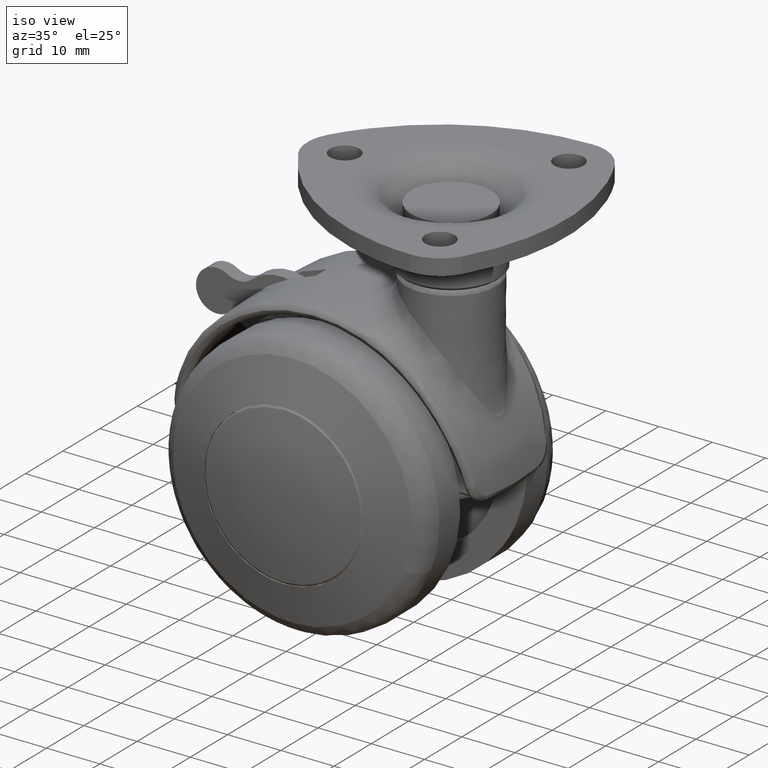
[diagram: clean part render]
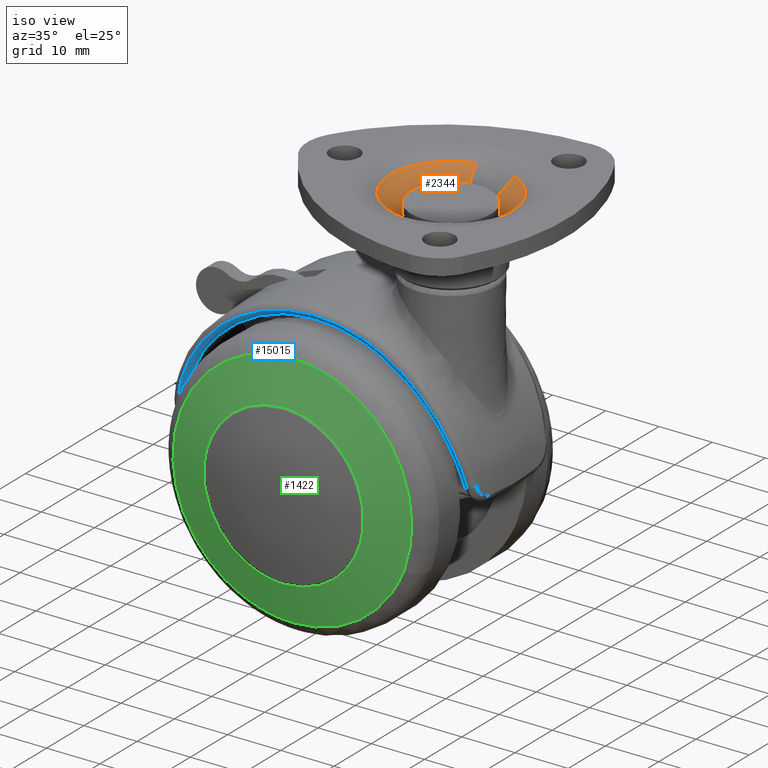
[diagram: same view with three faces highlighted in distinct colors, each labeled with its STEP entity id]
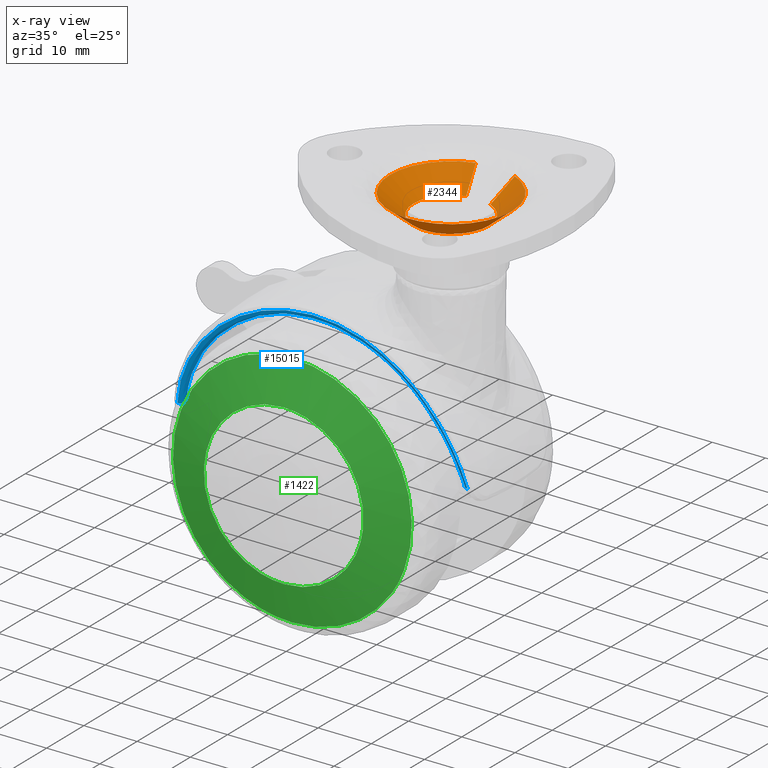
[diagram: x-ray of the same camera — body ghosted, the three highlighted faces saturated]
A machine part, iso view with three faces highlighted in distinct colors.
The next image is the same camera in x-ray (body ghosted, the three faces saturated) — at least one of them is partly hidden behind the body in this view.
Their STEP definitions:

[orange] entity #2344 — the highlighted face is a freeform B-spline surface patch.
#2148=CARTESIAN_POINT('',(15.104637162230283,6.694128593387940,44.280788579391562));
#2149=CARTESIAN_POINT('',(11.933819287623068,5.796349251233886,44.280788579391569));
#2150=CARTESIAN_POINT('',(10.619755434617170,2.774209292305697,44.280788579391569));
#2151=CARTESIAN_POINT('',(7.845546142311468,-3.606035273077136,44.280788579391569));
#2152=CARTESIAN_POINT('',(14.225790707694300,-6.380244565382834,44.280788579391569));
#2153=CARTESIAN_POINT('',(20.606035273077140,-9.154453857688532,44.280788579391569));
#2154=CARTESIAN_POINT('',(23.380244565382839,-2.774209292305697,44.280788579391569));
#2155=CARTESIAN_POINT('',(26.154453857688534,3.606035273077136,44.280788579391569));
#2156=CARTESIAN_POINT('',(19.774209292305699,6.380244565382834,44.280788579391569));
#2157=CARTESIAN_POINT('',(13.841690610891673,11.154660610141388,48.184685171949262));
#2158=CARTESIAN_POINT('',(8.558045883368944,9.658659491427278,48.184685171949269));
#2159=CARTESIAN_POINT('',(6.368375324184616,4.622761974984550,48.184685171949269));
#2160=CARTESIAN_POINT('',(1.745613349200067,-6.008862700830835,48.184685171949269));
#2161=CARTESIAN_POINT('',(12.377238025015449,-10.631624675815390,48.184685171949269));
#2162=CARTESIAN_POINT('',(23.008862700830829,-15.254386650799932,48.184685171949269));
#2163=CARTESIAN_POINT('',(27.631624675815392,-4.622761974984550,48.184685171949269));
#2164=CARTESIAN_POINT('',(32.254386650799930,6.008862700830835,48.184685171949269));
#2165=CARTESIAN_POINT('',(21.622761974984549,10.631624675815390,48.184685171949269));
#2173=(BOUNDED_SURFACE()B_SPLINE_SURFACE(2,1,((#2148,#2157),(#2149,#2158),(#2150,#2159),(#2151,#2160),(#2152,#2161),(#2153,#2162),(#2154,#2163),(#2155,#2164),(#2156,#2165)),.UNSPECIFIED.,.F.,.F.,.U.)B_SPLINE_SURFACE_WITH_KNOTS((3,2,2,2,3),(2,2),(0.0,10.756579299963869,29.964756621327918,49.172933942691976,68.381111264056031),(0.0,6.060675578630184),.UNSPECIFIED.)GEOMETRIC_REPRESENTATION_ITEM()RATIONAL_B_SPLINE_SURFACE(((0.855662221768731,0.855662221768731),(0.835979797464467,0.835979797464467),(1.0,1.0),(0.707106781186548,0.707106781186548),(1.0,1.0),(0.707106781186548,0.707106781186548),(1.0,1.0),(0.707106781186548,0.707106781186548),(1.0,1.0)))REPRESENTATION_ITEM('')SURFACE());
#2174=CARTESIAN_POINT('',(13.872494185321200,11.045867146233499,48.089468181816997));
#2175=VERTEX_POINT('',#2174);
#2176=CARTESIAN_POINT('',(9.794046482579063,8.936817528615601,48.089468181886893));
#2177=VERTEX_POINT('',#2176);
#2178=CARTESIAN_POINT('',(13.872494185321200,11.045867146233503,48.089468181816997));
#2179=CARTESIAN_POINT('',(11.618042782996531,10.407546064139927,48.089468181837155));
#2180=CARTESIAN_POINT('',(9.794046482579061,8.936817528615601,48.089468181886893));
#2188=(BOUNDED_CURVE()B_SPLINE_CURVE(2,(#2178,#2179,#2180),.UNSPECIFIED.,.F.,.U.)B_SPLINE_CURVE_WITH_KNOTS((3,3),(0.296417913783239,0.358867648263906),.UNSPECIFIED.)CURVE()GEOMETRIC_REPRESENTATION_ITEM()RATIONAL_B_SPLINE_CURVE((0.911430442852524,0.865435143922131,0.855992631305386))REPRESENTATION_ITEM(''));
#2189=EDGE_CURVE('',#2175,#2177,#2188,.T.);
#2190=ORIENTED_EDGE('',*,*,#2189,.T.);
#2191=CARTESIAN_POINT('',(5.519909685344042,0.0,48.089468181800903));
#2192=VERTEX_POINT('',#2191);
#2193=CARTESIAN_POINT('',(9.794046482579063,8.936817528615602,48.089468181886886));
#2194=CARTESIAN_POINT('',(5.519909685344042,5.490486551106015,48.089468181800896));
#2195=CARTESIAN_POINT('',(5.519909685344042,0.0,48.089468181800903));
#2203=(BOUNDED_CURVE()B_SPLINE_CURVE(2,(#2193,#2194,#2195),.UNSPECIFIED.,.F.,.U.)B_SPLINE_CURVE_WITH_KNOTS((3,3),(0.358867648263906,0.500000000000000),.UNSPECIFIED.)CURVE()GEOMETRIC_REPRESENTATION_ITEM()RATIONAL_B_SPLINE_CURVE((0.855992631305386,0.834653164885212,1.0))REPRESENTATION_ITEM(''));
#2204=EDGE_CURVE('',#2177,#2192,#2203,.T.);
#2205=ORIENTED_EDGE('',*,*,#2204,.T.);
#2206=CARTESIAN_POINT('',(7.665688158340794,-6.683039028992331,48.089465049150199));
#2207=VERTEX_POINT('',#2206);
#2208=CARTESIAN_POINT('',(5.519909685344042,0.0,48.089468181800903));
#2209=CARTESIAN_POINT('',(5.519911197693872,-3.685999829704693,48.089466615475544));
#2210=CARTESIAN_POINT('',(7.665688158340794,-6.683039028992331,48.089465049150199));
#2218=(BOUNDED_CURVE()B_SPLINE_CURVE(2,(#2208,#2209,#2210),.UNSPECIFIED.,.F.,.U.)B_SPLINE_CURVE_WITH_KNOTS((3,3),(0.500000000000000,0.600192969538091),.UNSPECIFIED.)CURVE()GEOMETRIC_REPRESENTATION_ITEM()RATIONAL_B_SPLINE_CURVE((1.0,0.882616634598042,0.859321172828059))REPRESENTATION_ITEM(''));
#2219=EDGE_CURVE('',#2192,#2207,#2218,.T.);
#2220=ORIENTED_EDGE('',*,*,#2219,.T.);
#2221=CARTESIAN_POINT('',(28.480090314655961,0.0,48.089468181800903));
#2222=VERTEX_POINT('',#2221);
#2223=CARTESIAN_POINT('',(7.665688158340794,-6.683039028992331,48.089465049150199));
#2224=CARTESIAN_POINT('',(11.100206386142411,-11.480088327745138,48.089465307604549));
#2225=CARTESIAN_POINT('',(17.000001997931619,-11.480088884207300,48.089466112563422));
#2226=CARTESIAN_POINT('',(28.480090800237750,-11.480089966996500,48.089467678888752));
#2227=CARTESIAN_POINT('',(28.480090314655961,0.0,48.089468181800903));
#2235=(BOUNDED_CURVE()B_SPLINE_CURVE(2,(#2223,#2224,#2225,#2226,#2227),.UNSPECIFIED.,.F.,.U.)B_SPLINE_CURVE_WITH_KNOTS((3,2,3),(0.600192969538091,0.750000000000000,1.0),.UNSPECIFIED.)CURVE()GEOMETRIC_REPRESENTATION_ITEM()RATIONAL_B_SPLINE_CURVE((0.859321172828059,0.824490146588506,1.0,0.707106781186547,1.0))REPRESENTATION_ITEM(''));
#2236=EDGE_CURVE('',#2207,#2222,#2235,.T.);
#2237=ORIENTED_EDGE('',*,*,#2236,.T.);
#2238=CARTESIAN_POINT('',(21.577675324213331,10.527932477883970,48.089468181805977));
#2239=VERTEX_POINT('',#2238);
#2240=CARTESIAN_POINT('',(28.480090314655961,0.0,48.089468181800903));
#2241=CARTESIAN_POINT('',(28.480090314655953,7.526677022817102,48.089468181800889));
#2242=CARTESIAN_POINT('',(21.577675324213331,10.527932477883972,48.089468181805977));
#2250=(BOUNDED_CURVE()B_SPLINE_CURVE(2,(#2240,#2241,#2242),.UNSPECIFIED.,.F.,.U.)B_SPLINE_CURVE_WITH_KNOTS((3,3),(0.0,0.182294095771706),.UNSPECIFIED.)CURVE()GEOMETRIC_REPRESENTATION_ITEM()RATIONAL_B_SPLINE_CURVE((1.0,0.786429182074949,0.884319957244864))REPRESENTATION_ITEM(''));
#2251=EDGE_CURVE('',#2222,#2239,#2250,.T.);
#2252=ORIENTED_EDGE('',*,*,#2251,.T.);
#2253=CARTESIAN_POINT('',(19.818196268939928,6.481407685332151,44.373683204025490));
#2254=VERTEX_POINT('',#2253);
#2255=CARTESIAN_POINT('',(19.818196268939928,6.481407685332151,44.373683204025490));
#2256=CARTESIAN_POINT('',(21.577675324213331,10.527932477883970,48.089468181805977));
#2257=QUASI_UNIFORM_CURVE('',1,(#2255,#2256),.UNSPECIFIED.,.F.,.U.);
#2258=EDGE_CURVE('',#2254,#2239,#2257,.T.);
#2259=ORIENTED_EDGE('',*,*,#2258,.F.);
#2260=CARTESIAN_POINT('',(24.067593352304112,0.0,44.373683204012600));
#2261=VERTEX_POINT('',#2260);
#2262=CARTESIAN_POINT('',(19.818196268939932,6.481407685332151,44.373683204025490));
#2263=CARTESIAN_POINT('',(24.067593352304112,4.633717247095879,44.373683204012593));
#2264=CARTESIAN_POINT('',(24.067593352304112,0.0,44.373683204012600));
#2272=(BOUNDED_CURVE()B_SPLINE_CURVE(2,(#2262,#2263,#2264),.UNSPECIFIED.,.F.,.U.)B_SPLINE_CURVE_WITH_KNOTS((3,3),(0.317705904234122,0.500000000000000),.UNSPECIFIED.)CURVE()GEOMETRIC_REPRESENTATION_ITEM()RATIONAL_B_SPLINE_CURVE((0.884319957238605,0.786429182081778,1.0))REPRESENTATION_ITEM(''));
#2273=EDGE_CURVE('',#2254,#2261,#2272,.T.);
#2274=ORIENTED_EDGE('',*,*,#2273,.T.);
#2275=CARTESIAN_POINT('',(21.873831356847951,-5.118265692394044,44.373683203976803));
#2276=VERTEX_POINT('',#2275);
#2277=CARTESIAN_POINT('',(24.067593352304112,0.0,44.373683204012600));
#2278=CARTESIAN_POINT('',(24.067593352304108,-3.029271754758443,44.373683204012607));
#2279=CARTESIAN_POINT('',(21.873831356847955,-5.118265692394044,44.373683203976796));
#2287=(BOUNDED_CURVE()B_SPLINE_CURVE(2,(#2277,#2278,#2279),.UNSPECIFIED.,.F.,.U.)B_SPLINE_CURVE_WITH_KNOTS((3,3),(0.500000000000000,0.628690594339507),.UNSPECIFIED.)CURVE()GEOMETRIC_REPRESENTATION_ITEM()RATIONAL_B_SPLINE_CURVE((1.0,0.849229590371543,0.853681049734262))REPRESENTATION_ITEM(''));
#2288=EDGE_CURVE('',#2261,#2276,#2287,.T.);
#2289=ORIENTED_EDGE('',*,*,#2288,.T.);
#2290=CARTESIAN_POINT('',(11.611366377829111,-4.573128412442659,44.373683203842667));
#2291=VERTEX_POINT('',#2290);
#2292=CARTESIAN_POINT('',(21.873831356847951,-5.118265692394044,44.373683203976796));
#2293=CARTESIAN_POINT('',(19.826740238147348,-7.067593352304111,44.373683204012600));
#2294=CARTESIAN_POINT('',(17.0,-7.067593352304110,44.373683204012600));
#2295=CARTESIAN_POINT('',(13.728323901538131,-7.067593352304110,44.373683204012600));
#2296=CARTESIAN_POINT('',(11.611366377829114,-4.573128412442659,44.373683203842674));
#2304=(BOUNDED_CURVE()B_SPLINE_CURVE(2,(#2292,#2293,#2294,#2295,#2296),.UNSPECIFIED.,.F.,.U.)B_SPLINE_CURVE_WITH_KNOTS((3,2,3),(0.628690594339508,0.750000000000000,0.887331629832884),.UNSPECIFIED.)CURVE()GEOMETRIC_REPRESENTATION_ITEM()RATIONAL_B_SPLINE_CURVE((0.853681049734262,0.857877190815006,1.0,0.839105987573396,0.854978670801975))REPRESENTATION_ITEM(''));
#2305=EDGE_CURVE('',#2276,#2291,#2304,.T.);
#2306=ORIENTED_EDGE('',*,*,#2305,.T.);
#2307=CARTESIAN_POINT('',(9.932406647695892,0.0,44.373683204012600));
#2308=VERTEX_POINT('',#2307);
#2309=CARTESIAN_POINT('',(11.611366377829114,-4.573128412442659,44.373683203842674));
#2310=CARTESIAN_POINT('',(9.932406647695892,-2.594767423066291,44.373683204012600));
#2311=CARTESIAN_POINT('',(9.932406647695892,0.0,44.373683204012600));
#2319=(BOUNDED_CURVE()B_SPLINE_CURVE(2,(#2309,#2310,#2311),.UNSPECIFIED.,.F.,.U.)B_SPLINE_CURVE_WITH_KNOTS((3,3),(0.887331629832884,1.0),.UNSPECIFIED.)CURVE()GEOMETRIC_REPRESENTATION_ITEM()RATIONAL_B_SPLINE_CURVE((0.854978670801975,0.868000793613151,1.0))REPRESENTATION_ITEM(''));
#2320=EDGE_CURVE('',#2291,#2308,#2319,.T.);
#2321=ORIENTED_EDGE('',*,*,#2320,.T.);
#2322=CARTESIAN_POINT('',(15.074584894338029,6.800268558269637,44.373683204022640));
#2323=VERTEX_POINT('',#2322);
#2324=CARTESIAN_POINT('',(9.932406647695892,0.0,44.373683204012600));
#2325=CARTESIAN_POINT('',(9.932406647695892,5.344321989701387,44.373683204012600));
#2326=CARTESIAN_POINT('',(15.074584894338031,6.800268558269637,44.373683204022647));
#2334=(BOUNDED_CURVE()B_SPLINE_CURVE(2,(#2324,#2325,#2326),.UNSPECIFIED.,.F.,.U.)B_SPLINE_CURVE_WITH_KNOTS((3,3),(0.0,0.203582086212216),.UNSPECIFIED.)CURVE()GEOMETRIC_REPRESENTATION_ITEM()RATIONAL_B_SPLINE_CURVE((1.0,0.761488749906185,0.911430442845829))REPRESENTATION_ITEM(''));
#2335=EDGE_CURVE('',#2308,#2323,#2334,.T.);
#2336=ORIENTED_EDGE('',*,*,#2335,.T.);
#2337=CARTESIAN_POINT('',(15.074584894338029,6.800268558269637,44.373683204022640));
#2338=CARTESIAN_POINT('',(13.872494185321200,11.045867146233499,48.089468181816997));
#2339=QUASI_UNIFORM_CURVE('',1,(#2337,#2338),.UNSPECIFIED.,.F.,.U.);
#2340=EDGE_CURVE('',#2323,#2175,#2339,.T.);
#2341=ORIENTED_EDGE('',*,*,#2340,.T.);
#2342=EDGE_LOOP('',(#2190,#2205,#2220,#2237,#2252,#2259,#2274,#2289,#2306,#2321,#2336,#2341));
#2343=FACE_OUTER_BOUND('',#2342,.T.);
#2344=ADVANCED_FACE('',(#2343),#2173,.F.);

[blue] entity #15015 — the highlighted face is a freeform B-spline surface patch.
#13342=CARTESIAN_POINT('',(27.261152975010301,-10.271629561980440,4.510384661876330));
#13343=VERTEX_POINT('',#13342);
#13574=CARTESIAN_POINT('',(-27.261152975010301,-10.271629561980440,4.510384661876320));
#13575=VERTEX_POINT('',#13574);
#13743=CARTESIAN_POINT('',(19.354916168388549,-12.272106327352761,19.479187989933848));
#13744=VERTEX_POINT('',#13743);
#13758=CARTESIAN_POINT('',(19.354916168388531,-12.272106327352761,19.479187989933830));
#13759=CARTESIAN_POINT('',(19.868279751392219,-12.238787454939841,18.970338735141581));
#13760=CARTESIAN_POINT('',(20.359478426985980,-12.200845321601230,18.444148100191342));
#13761=CARTESIAN_POINT('',(21.298546933358139,-12.114300974920869,17.358012076652710));
#13762=CARTESIAN_POINT('',(21.746414945876850,-12.065700081031441,16.798065113807230));
#13763=CARTESIAN_POINT('',(22.599051469704559,-11.956306743845040,15.644736892987551));
#13764=CARTESIAN_POINT('',(23.003820394754499,-11.895516034860149,15.051355811556309));
#13765=CARTESIAN_POINT('',(23.578264112314510,-11.793913814347180,14.136013673363230));
#13766=CARTESIAN_POINT('',(23.764287888012490,-11.758308929944070,13.826683316886649));
#13767=CARTESIAN_POINT('',(24.035034289493609,-11.702120811179670,13.356296348236681));
#13768=CARTESIAN_POINT('',(24.123996754390230,-11.682905699180600,13.198258458018730));
#13769=CARTESIAN_POINT('',(24.298535332963720,-11.643655358923850,12.881139558554111));
#13770=CARTESIAN_POINT('',(24.384127293954119,-11.623618948296830,12.722040736155700));
#13771=CARTESIAN_POINT('',(24.803789830221540,-11.521347566266600,11.923887437646330));
#13772=CARTESIAN_POINT('',(25.113006489993250,-11.432846150432930,11.276868844422530));
#13773=CARTESIAN_POINT('',(25.680073199159569,-11.241604887016541,9.966580931738132));
#13774=CARTESIAN_POINT('',(25.937920025592032,-11.138865845317509,9.303310316699220));
#13775=CARTESIAN_POINT('',(26.402994602317310,-10.918228278377700,7.960938070717684));
#13776=CARTESIAN_POINT('',(26.610221690296669,-10.800330712296089,7.281836044673677));
#13777=CARTESIAN_POINT('',(26.973960845275592,-10.548376197579010,5.907928674414235));
#13778=CARTESIAN_POINT('',(27.130474681720440,-10.414320469498721,5.213123771438796));
#13779=CARTESIAN_POINT('',(27.261152975010301,-10.271629561980440,4.510384661876344));
#13780=B_SPLINE_CURVE_WITH_KNOTS('',3,(#13758,#13759,#13760,#13761,#13762,#13763,#13764,#13765,#13766,#13767,#13768,#13769,#13770,#13771,#13772,#13773,#13774,#13775,#13776,#13777,#13778,#13779),.UNSPECIFIED.,.F.,.U.,(4,2,2,2,2,2,2,2,2,2,4),(0.0,0.125000000000000,0.250000000000000,0.375000000000001,0.437500000000001,0.468750000000001,0.500000000000001,0.625000000000001,0.750000000000000,0.875000000000000,1.0),.UNSPECIFIED.);
#13781=EDGE_CURVE('',#13744,#13343,#13780,.T.);
#13903=CARTESIAN_POINT('',(26.278307929067150,-9.219599711006250,4.539586815301530));
#13904=VERTEX_POINT('',#13903);
#13905=CARTESIAN_POINT('',(27.261152975010301,-10.271629561980440,4.510384661876334));
#13906=CARTESIAN_POINT('',(26.843124668641284,-10.256333982909650,4.435055393856429));
#13907=CARTESIAN_POINT('',(26.553024164436501,-9.945812612866797,4.443674819133568));
#13908=CARTESIAN_POINT('',(26.262923660231721,-9.635291242823941,4.452294244410708));
#13909=CARTESIAN_POINT('',(26.278307929067161,-9.219599711006250,4.539586815301526));
#13917=(BOUNDED_CURVE()B_SPLINE_CURVE(2,(#13905,#13906,#13907,#13908,#13909),.UNSPECIFIED.,.F.,.U.)B_SPLINE_CURVE_WITH_KNOTS((3,2,3),(0.0,0.500000000000000,1.0),.UNSPECIFIED.)CURVE()GEOMETRIC_REPRESENTATION_ITEM()RATIONAL_B_SPLINE_CURVE((1.0,0.920318789902017,1.0,0.920318789902017,1.0))REPRESENTATION_ITEM(''));
#13918=EDGE_CURVE('',#13343,#13904,#13917,.T.);
#14056=CARTESIAN_POINT('',(-26.278307929067150,-9.219599711006250,4.539586815301511));
#14057=VERTEX_POINT('',#14056);
#14088=CARTESIAN_POINT('',(-26.278307929067161,-9.219599711006250,4.539586815301509));
#14089=CARTESIAN_POINT('',(-26.262923660231714,-9.635291242823946,4.452294244410691));
#14090=CARTESIAN_POINT('',(-26.553024164436501,-9.945812612866805,4.443674819133550));
#14091=CARTESIAN_POINT('',(-26.843124668641284,-10.256333982909661,4.435055393856411));
#14092=CARTESIAN_POINT('',(-27.261152975010301,-10.271629561980451,4.510384661876316));
#14100=(BOUNDED_CURVE()B_SPLINE_CURVE(2,(#14088,#14089,#14090,#14091,#14092),.UNSPECIFIED.,.F.,.U.)B_SPLINE_CURVE_WITH_KNOTS((3,2,3),(0.0,0.500000000000000,1.0),.UNSPECIFIED.)CURVE()GEOMETRIC_REPRESENTATION_ITEM()RATIONAL_B_SPLINE_CURVE((1.0,0.920318789902016,1.0,0.920318789902016,1.0))REPRESENTATION_ITEM(''));
#14101=EDGE_CURVE('',#14057,#13575,#14100,.T.);
#14318=CARTESIAN_POINT('',(8.954124542942761,-12.508446997695160,25.978903348831551));
#14319=VERTEX_POINT('',#14318);
#14393=CARTESIAN_POINT('',(-27.261152975010301,-10.271629561980440,4.510384661876320));
#14394=CARTESIAN_POINT('',(-27.170807874768819,-10.370279643939289,4.996226906205359));
#14395=CARTESIAN_POINT('',(-27.067824608622619,-10.465106035662940,5.479778480358598));
#14396=CARTESIAN_POINT('',(-26.894322845390182,-10.601781369826000,6.201620702191340));
#14397=CARTESIAN_POINT('',(-26.833316176892481,-10.646412323988750,6.441653558681054));
#14398=CARTESIAN_POINT('',(-26.704926300645099,-10.733846556276260,6.920544242935019));
#14399=CARTESIAN_POINT('',(-26.637500026981229,-10.776675135780099,7.159546384817672));
#14400=CARTESIAN_POINT('',(-26.284797386586568,-10.986032603386681,8.349968534972113));
#14401=CARTESIAN_POINT('',(-25.954808921902629,-11.137173169650019,9.281581951533157));
#14402=CARTESIAN_POINT('',(-25.201290905649032,-11.410354325556050,11.103878747306791));
#14403=CARTESIAN_POINT('',(-24.777757324918369,-11.532387910928421,11.994561158128651));
#14404=CARTESIAN_POINT('',(-23.836206548868201,-11.750482245833920,13.734110922228069));
#14405=CARTESIAN_POINT('',(-23.318202474739191,-11.846537821643849,14.582985295734201));
#14406=CARTESIAN_POINT('',(-22.609090468509301,-11.952162598626019,15.616469117940150));
#14407=CARTESIAN_POINT('',(-22.464102564636502,-11.972571200446151,15.821867206604180));
#14408=CARTESIAN_POINT('',(-22.169698633563229,-12.011755747991661,16.227372865984020));
#14409=CARTESIAN_POINT('',(-22.020072894454358,-12.030564556378030,16.427794210123849));
#14410=CARTESIAN_POINT('',(-21.563990725998149,-12.084762087647700,17.022120607539740));
#14411=CARTESIAN_POINT('',(-21.250334434741070,-12.117923537929331,17.409092922921580));
#14412=CARTESIAN_POINT('',(-20.280902583577280,-12.209404773786799,18.542546632425449));
#14413=CARTESIAN_POINT('',(-19.596742199587709,-12.259740023971780,19.261640436398679));
#14414=CARTESIAN_POINT('',(-18.152580561619889,-12.343401740285280,20.626348165488391));
#14415=CARTESIAN_POINT('',(-17.392587398305601,-12.376721357644270,21.271970537336198));
#14416=CARTESIAN_POINT('',(-16.393511077091620,-12.410092395890970,22.031250131198458));
#14417=CARTESIAN_POINT('',(-16.191038942942289,-12.416357221921700,22.180851914710399));
#14418=CARTESIAN_POINT('',(-15.781976075795811,-12.428087519162959,22.474568082327540));
#14419=CARTESIAN_POINT('',(-15.575907091437630,-12.433539111026059,22.618316481503200));
#14420=CARTESIAN_POINT('',(-14.953137937817621,-12.448764803608499,23.040332491166819));
#14421=CARTESIAN_POINT('',(-14.531878939353451,-12.457411860415389,23.309377707211699));
#14422=CARTESIAN_POINT('',(-13.250140486487149,-12.479655777395550,24.080161315991631));
#14423=CARTESIAN_POINT('',(-12.371750084707880,-12.489580903844690,24.545649561160690));
#14424=CARTESIAN_POINT('',(-10.567394566152030,-12.503250936848930,25.380259925536730));
#14425=CARTESIAN_POINT('',(-9.641433043673301,-12.506990605436080,25.749389451699280));
#14426=CARTESIAN_POINT('',(-8.453345169007204,-12.509587305410360,26.148703767054439));
#14427=CARTESIAN_POINT('',(-8.214191488552370,-12.510001074735280,26.225453051227628));
#14428=CARTESIAN_POINT('',(-7.853126367810701,-12.510492027412910,26.335844224334899));
#14429=CARTESIAN_POINT('',(-7.732296520800487,-12.510634109872790,26.371876427652840));
#14430=CARTESIAN_POINT('',(-7.490530907380267,-12.510878922996501,26.442157317937781));
#14431=CARTESIAN_POINT('',(-6.885594441542398,-12.511392420875319,26.613483613952059));
#14432=CARTESIAN_POINT('',(-6.278065076994899,-12.511481026411390,26.763091670760090));
#14433=CARTESIAN_POINT('',(-4.815109255633004,-12.511276541199720,27.081231498363071));
#14434=CARTESIAN_POINT('',(-3.833305391638708,-12.510613015400070,27.238881089594809));
#14435=CARTESIAN_POINT('',(-1.856843735428037,-12.509601611072350,27.446517567134631));
#14436=CARTESIAN_POINT('',(-0.862186397378143,-12.509252604527269,27.496508256375289));
#14437=CARTESIAN_POINT('',(0.389359015388552,-12.509292228457930,27.490115990632258));
#14438=CARTESIAN_POINT('',(0.765441130263157,-12.509336438549960,27.483017933342040));
#14439=CARTESIAN_POINT('',(1.142461662865320,-12.509426671198250,27.468059843103990));
#14440=CARTESIAN_POINT('',(1.394018647122319,-12.509496327956310,27.456329170516138));
#14441=CARTESIAN_POINT('',(1.519918288747870,-12.509535941117120,27.449581926974691));
#14442=CARTESIAN_POINT('',(2.147943260652488,-12.509754872704599,27.411556318860541));
#14443=CARTESIAN_POINT('',(2.647246435921882,-12.509999351099131,27.367354529920121));
#14444=CARTESIAN_POINT('',(4.136017772790134,-12.510791089806419,27.194344073313399));
#14445=CARTESIAN_POINT('',(5.116373703263393,-12.511423418417831,27.025245002354389));
#14446=CARTESIAN_POINT('',(7.053232315275142,-12.511448231261280,26.581582717751431));
#14447=CARTESIAN_POINT('',(8.009734731007871,-12.510844195369719,26.307018317509620));
#14448=CARTESIAN_POINT('',(8.954124542942761,-12.508446997695170,25.978903348831551));
#14449=B_SPLINE_CURVE_WITH_KNOTS('',3,(#14393,#14394,#14395,#14396,#14397,#14398,#14399,#14400,#14401,#14402,#14403,#14404,#14405,#14406,#14407,#14408,#14409,#14410,#14411,#14412,#14413,#14414,#14415,#14416,#14417,#14418,#14419,#14420,#14421,#14422,#14423,#14424,#14425,#14426,#14427,#14428,#14429,#14430,#14431,#14432,#14433,#14434,#14435,#14436,#14437,#14438,#14439,#14440,#14441,#14442,#14443,#14444,#14445,#14446,#14447,#14448),.UNSPECIFIED.,.F.,.U.,(4,2,2,2,2,2,2,2,2,2,2,2,2,2,2,2,2,2,2,1,2,2,2,1,2,2,2,2,4),(0.0,0.031250000000000,0.046875000000000,0.062500000000000,0.124999999999999,0.187499999999999,0.249999999999999,0.265624999999999,0.281249999999999,0.312499999999999,0.375000000000000,0.437500000000000,0.453125000000000,0.468750000000001,0.500000000000001,0.562500000000001,0.625000000000001,0.640625000000001,0.648437500000001,0.656250000000001,0.687500000000001,0.750000000000001,0.812500000000000,0.828125000000000,0.835937500000000,0.843750000000000,0.875000000000000,0.937500000000000,1.0),.UNSPECIFIED.);
#14450=EDGE_CURVE('',#13575,#14319,#14449,.T.);
#14590=CARTESIAN_POINT('',(27.339163228243912,-10.194844278145851,4.132200650352314));
#14591=CARTESIAN_POINT('',(27.315636661880600,-10.220529900098597,4.258707826017932));
#14592=CARTESIAN_POINT('',(27.292110006719057,-10.246215618998649,4.385215479169788));
#14593=CARTESIAN_POINT('',(26.974491464102758,-10.592982320302694,6.093115567303689));
#14594=CARTESIAN_POINT('',(26.550465378766813,-10.870300639384853,7.633937876096092));
#14595=CARTESIAN_POINT('',(25.723691211543766,-11.229661526153052,9.884093824570529));
#14596=CARTESIAN_POINT('',(25.416138549058687,-11.339992049055178,10.623922562938850));
#14597=CARTESIAN_POINT('',(24.905848534341459,-11.492284135726262,11.717797031209649));
#14598=CARTESIAN_POINT('',(24.727580949044697,-11.540846767705702,12.079773216469068));
#14599=CARTESIAN_POINT('',(24.354397006393807,-11.633725209375736,12.798290153573880));
#14600=CARTESIAN_POINT('',(24.158973133026659,-11.678141994228378,13.155693267757503));
#14601=CARTESIAN_POINT('',(23.146094119809973,-11.888605550679314,14.916926122740813));
#14602=CARTESIAN_POINT('',(22.225704872947734,-12.019632449652212,16.239473037039524));
#14603=CARTESIAN_POINT('',(20.684344568441304,-12.174651934130489,18.095895428778338));
#14604=CARTESIAN_POINT('',(20.143614676663372,-12.219364594618281,18.693352844810025));
#14605=CARTESIAN_POINT('',(19.291315064572629,-12.277529261786768,19.556733620981081));
#14606=CARTESIAN_POINT('',(19.000338469792041,-12.295431986330838,19.839052063522534));
#14607=CARTESIAN_POINT('',(18.404380792938330,-12.328507628622916,20.392512644788663));
#14608=CARTESIAN_POINT('',(18.098943132659954,-12.343693615409322,20.663988692700620));
#14609=CARTESIAN_POINT('',(16.551353317488633,-12.412765840552810,21.980090189606226));
#14610=CARTESIAN_POINT('',(15.238096125757345,-12.446989059833012,22.911991423312283));
#14611=CARTESIAN_POINT('',(13.158193615517051,-12.480470186284009,24.132371933402759));
#14612=CARTESIAN_POINT('',(12.446453822908099,-12.488605720946444,24.509421104809626));
#14613=CARTESIAN_POINT('',(10.985299983871842,-12.500622586832256,25.202680652521238));
#14614=CARTESIAN_POINT('',(10.232308457059045,-12.504506613991685,25.520006636847363));
#14615=CARTESIAN_POINT('',(7.955086714822136,-12.512002605692278,26.362670736707617));
#14616=CARTESIAN_POINT('',(6.405801529358871,-12.511796355836116,26.784319953001685));
#14617=CARTESIAN_POINT('',(4.036100147403539,-12.510762766612618,27.210755579568360));
#14618=CARTESIAN_POINT('',(3.238527900463188,-12.510246754121297,27.318368089711164));
#14619=CARTESIAN_POINT('',(1.627668022559339,-12.509481180202323,27.462848986440338));
#14620=CARTESIAN_POINT('',(0.812422821651981,-12.509234917367358,27.499359343403960));
#14621=CARTESIAN_POINT('',(-1.609340689085083,-12.509232034973467,27.499818967667206));
#14622=CARTESIAN_POINT('',(-3.207139790681278,-12.510389676144882,27.357623878398641));
#14623=CARTESIAN_POINT('',(-5.579190086727309,-12.511441371962865,26.934183831516776));
#14624=CARTESIAN_POINT('',(-6.365742930519964,-12.511630951019399,26.757816450082291));
#14625=CARTESIAN_POINT('',(-7.539215026669861,-12.510914221114916,26.439067107804192));
#14626=CARTESIAN_POINT('',(-7.930122198351685,-12.510502872924857,26.323480571981992));
#14627=CARTESIAN_POINT('',(-8.702721398416651,-12.509184072036586,26.076200054507119));
#14628=CARTESIAN_POINT('',(-9.085053564581219,-12.508276983567894,25.944372268328198));
#14629=CARTESIAN_POINT('',(-10.977219209981385,-12.502078393609869,25.245009387773759));
#14630=CARTESIAN_POINT('',(-12.428998728986409,-12.492001643433682,24.557698401052008));
#14631=CARTESIAN_POINT('',(-14.514866469032928,-12.458731051658507,23.337566507662849));
#14632=CARTESIAN_POINT('',(-15.194771194953066,-12.444576052633938,22.899153821117686));
#14633=CARTESIAN_POINT('',(-16.522941206596236,-12.407802806165932,21.957180078325500));
#14634=CARTESIAN_POINT('',(-17.165005866970223,-12.385316703669030,21.457771264427670));
#14635=CARTESIAN_POINT('',(-19.010984676282586,-12.303107077464544,19.889272975729309));
#14636=CARTESIAN_POINT('',(-20.142321326891103,-12.228578214711865,18.745441489946003));
#14637=CARTESIAN_POINT('',(-21.691459297615825,-12.073646852096903,16.884501805209858));
#14638=CARTESIAN_POINT('',(-22.183606007614458,-12.014704417228943,16.239074051911505));
#14639=CARTESIAN_POINT('',(-23.114611769605059,-11.879948251723761,14.901507455884401));
#14640=CARTESIAN_POINT('',(-23.547645842440787,-11.804993688890724,14.217886824358336));
#14641=CARTESIAN_POINT('',(-24.752885603199363,-11.555078831713219,12.124566122620196));
#14642=CARTESIAN_POINT('',(-25.431862390703252,-11.355154796846541,10.672707011859982));
#14643=CARTESIAN_POINT('',(-26.543127817392389,-10.874812841904269,7.659420149679149));
#14644=CARTESIAN_POINT('',(-26.975034047527188,-10.592390023517137,6.090198379662790));
#14645=CARTESIAN_POINT('',(-27.292066600604130,-10.246263002131272,4.385448851175481));
#14646=CARTESIAN_POINT('',(-27.315549849720274,-10.220624666288009,4.259174569655953));
#14647=CARTESIAN_POINT('',(-27.339033010107656,-10.194986427316252,4.132900765249289));
#14648=CARTESIAN_POINT('',(27.335443168099225,-10.194715033483600,4.131576019775850));
#14649=CARTESIAN_POINT('',(27.311920187633060,-10.220398546113554,4.258068844897829));
#14650=CARTESIAN_POINT('',(27.288397162703152,-10.246082107291185,4.384561909119958));
#14651=CARTESIAN_POINT('',(26.970831967639260,-10.592814942018203,6.092241713634686));
#14652=CARTESIAN_POINT('',(26.546868322178923,-10.870111292152737,7.632863138323160));
#14653=CARTESIAN_POINT('',(25.720208645818833,-11.229451235228151,9.882721838426777));
#14654=CARTESIAN_POINT('',(25.412697627127105,-11.339776803673248,10.622452262778543));
#14655=CARTESIAN_POINT('',(24.902475694671875,-11.492064264267571,11.716180361412517));
#14656=CARTESIAN_POINT('',(24.724231734218051,-11.540625822908213,12.078107957390305));
#14657=CARTESIAN_POINT('',(24.351096996168952,-11.633503017917265,12.796528107505850));
#14658=CARTESIAN_POINT('',(24.155698763094772,-11.677919630589788,13.153882917556173));
#14659=CARTESIAN_POINT('',(23.142952108655148,-11.888384470451165,14.914877021717373));
#14660=CARTESIAN_POINT('',(22.222681586857668,-12.019419158125158,16.237242051493073));
#14661=CARTESIAN_POINT('',(20.681521249048636,-12.174457252465274,18.093404806152574));
#14662=CARTESIAN_POINT('',(20.140861499627629,-12.219177255840503,18.690778113613479));
#14663=CARTESIAN_POINT('',(19.288672978643177,-12.277354285941273,19.554036322932753));
#14664=CARTESIAN_POINT('',(18.997734350562336,-12.295261350740269,19.836314558331541));
#14665=CARTESIAN_POINT('',(18.401854619875436,-12.328346053507415,20.389696013931694));
#14666=CARTESIAN_POINT('',(18.096456994045631,-12.343536767019311,20.661133096036178));
#14667=CARTESIAN_POINT('',(16.549070138214940,-12.412633110839076,21.977045425137668));
#14668=CARTESIAN_POINT('',(15.235987181196224,-12.446877505580725,22.908809987790896));
#14669=CARTESIAN_POINT('',(13.156364908370321,-12.480389716722547,24.129009176049603));
#14670=CARTESIAN_POINT('',(12.444721451010150,-12.488535481829786,24.506001989844048));
#14671=CARTESIAN_POINT('',(10.983766619121464,-12.500572025370875,25.199157361466938));
#14672=CARTESIAN_POINT('',(10.230878269453157,-12.504465540946523,25.516435316169183));
#14673=CARTESIAN_POINT('',(7.953969873864635,-12.511987539119856,26.358971511380911));
#14674=CARTESIAN_POINT('',(6.404900631259666,-12.511795546001192,26.780555624129391));
#14675=CARTESIAN_POINT('',(4.035531589785443,-12.510776617821163,27.206925323342155));
#14676=CARTESIAN_POINT('',(3.238071496698826,-12.510264384123440,27.314521138328622));
#14677=CARTESIAN_POINT('',(1.627438433409137,-12.509503903151042,27.458979619651068));
#14678=CARTESIAN_POINT('',(0.812308245788717,-12.509258944715018,27.495484295318128));
#14679=CARTESIAN_POINT('',(-1.609113724547633,-12.509256078662512,27.495943848168629));
#14680=CARTESIAN_POINT('',(-3.206687203306106,-12.510408568490570,27.353770980461828));
#14681=CARTESIAN_POINT('',(-5.578405257450822,-12.511445718627755,26.930396301870946));
#14682=CARTESIAN_POINT('',(-6.364848162329215,-12.511629308667253,26.754056130165580));
#14683=CARTESIAN_POINT('',(-7.538157076220195,-12.510902091320956,26.435355666445496));
#14684=CARTESIAN_POINT('',(-7.929009978027851,-12.510486984102506,26.319786834385841));
#14685=CARTESIAN_POINT('',(-8.701502185012529,-12.509160275692082,26.072544090554587));
#14686=CARTESIAN_POINT('',(-9.083781533437207,-12.508249033198522,25.940736400456945));
#14687=CARTESIAN_POINT('',(-10.975686003728924,-12.502028785476016,25.241480044475669));
#14688=CARTESIAN_POINT('',(-12.427267746383210,-12.491931984169833,24.554272826999519));
#14689=CARTESIAN_POINT('',(-14.512855220701548,-12.458630348480115,23.334321659151815));
#14690=CARTESIAN_POINT('',(-15.192669046642115,-12.444464815072630,22.895973622846956));
#14691=CARTESIAN_POINT('',(-16.520662519903638,-12.407670734222554,21.954137662417008));
#14692=CARTESIAN_POINT('',(-17.162642390911859,-12.385174433544130,21.454801386803709));
#14693=CARTESIAN_POINT('',(-19.008378233788207,-12.302935928584510,19.886529448741651));
#14694=CARTESIAN_POINT('',(-20.139568047097590,-12.228390100229420,18.742860380743256));
#14695=CARTESIAN_POINT('',(-21.688505453763945,-12.073439999447276,16.882180436410145));
#14696=CARTESIAN_POINT('',(-22.180588496876805,-12.014492435035404,16.236842183121659));
#14697=CARTESIAN_POINT('',(-23.111473551930057,-11.879728884737581,14.899459682537515));
#14698=CARTESIAN_POINT('',(-23.544451386494600,-11.804772119328064,14.215932416108547));
#14699=CARTESIAN_POINT('',(-24.749533505953842,-11.554855676552378,12.122895800013541));
#14700=CARTESIAN_POINT('',(-25.428420266997076,-11.354937263038021,10.671230607926123));
#14701=CARTESIAN_POINT('',(-26.539531830879650,-10.874623148250699,7.658342077605313));
#14702=CARTESIAN_POINT('',(-26.971374422085916,-10.592222704736047,6.089324910128918));
#14703=CARTESIAN_POINT('',(-27.288353766672309,-10.246129485919004,4.384795251653189));
#14704=CARTESIAN_POINT('',(-27.311833395606232,-10.220493303331242,4.258535529777341));
#14705=CARTESIAN_POINT('',(-27.335312980111159,-10.194857169253176,4.132276046814679));
#14706=CARTESIAN_POINT('',(26.307512344522742,-10.159002016235130,3.958977460096618));
#14707=CARTESIAN_POINT('',(26.285248447733231,-10.184112158699246,4.081551044788177));
#14708=CARTESIAN_POINT('',(26.262996094087551,-10.209209282328924,4.204061078856423));
#14709=CARTESIAN_POINT('',(25.963714575119344,-10.546751341978920,5.851751461123319));
#14710=CARTESIAN_POINT('',(25.558970231640757,-10.818108838344607,7.337696418598710));
#14711=CARTESIAN_POINT('',(24.765248322301630,-11.171786999853138,9.506507163619332));
#14712=CARTESIAN_POINT('',(24.469408737761906,-11.280769775528704,10.219386505163412));
#14713=CARTESIAN_POINT('',(23.977898278900604,-11.431792147891432,11.273011835889596));
#14714=CARTESIAN_POINT('',(23.806092685672407,-11.480056986136288,11.621601144513049));
#14715=CARTESIAN_POINT('',(23.446271262956152,-11.572580615979307,12.313394869477611));
#14716=CARTESIAN_POINT('',(23.257765638030950,-11.616940669429129,12.657429111925573));
#14717=CARTESIAN_POINT('',(22.280431136845678,-11.827695210028098,14.352373415273689));
#14718=CARTESIAN_POINT('',(21.391389260436728,-11.960771843765695,15.623803193949858));
#14719=CARTESIAN_POINT('',(19.902672789804889,-12.120751846203319,17.406334969253990));
#14720=CARTESIAN_POINT('',(19.380431593302674,-12.167434121493512,17.979635104214196));
#14721=CARTESIAN_POINT('',(18.557472337672468,-12.228929498181456,18.807555657849335));
#14722=CARTESIAN_POINT('',(18.276543947348888,-12.248005161791831,19.078183958943889));
#14723=CARTESIAN_POINT('',(17.701255307742368,-12.283535420207528,19.608542232383080));
#14724=CARTESIAN_POINT('',(17.406454706792381,-12.300005104206909,19.868591514248362));
#14725=CARTESIAN_POINT('',(15.913035074179657,-12.375658023972868,21.128852299855438));
#14726=CARTESIAN_POINT('',(14.646634898737810,-12.415703261167092,22.019746178054334));
#14727=CARTESIAN_POINT('',(12.642995847963778,-12.457799668213600,23.184989470188622));
#14728=CARTESIAN_POINT('',(11.957671782407230,-12.468788025445212,23.544731022058276));
#14729=CARTESIAN_POINT('',(10.551436529441750,-12.486316290633839,24.205770277865422));
#14730=CARTESIAN_POINT('',(9.827087517189481,-12.492869219084742,24.508129652432775));
#14731=CARTESIAN_POINT('',(7.637465567976242,-12.507717786104077,25.310638947562961));
#14732=CARTESIAN_POINT('',(6.149075510116601,-12.511565579791903,25.711611322186869));
#14733=CARTESIAN_POINT('',(3.873743428189100,-12.514718103250569,26.116991614674379));
#14734=CARTESIAN_POINT('',(3.108128082476386,-12.515283849013525,26.219249722910952));
#14735=CARTESIAN_POINT('',(1.562024483914825,-12.515978067188151,26.356529597491107));
#14736=CARTESIAN_POINT('',(0.779657553643891,-12.516106019737508,26.391211558531257));
#14737=CARTESIAN_POINT('',(-1.544435473768544,-12.516107826372016,26.391648201174707));
#14738=CARTESIAN_POINT('',(-3.077806764797110,-12.515788422041121,26.256605653129728));
#14739=CARTESIAN_POINT('',(-5.355376778942767,-12.512680930012735,25.854076904109444));
#14740=CARTESIAN_POINT('',(-6.110794387453824,-12.511162991508272,25.686379072065304));
#14741=CARTESIAN_POINT('',(-7.238220303034206,-12.507463205066740,25.383134605102764));
#14742=CARTESIAN_POINT('',(-7.613856620686454,-12.505984804454803,25.273147261610738));
#14743=CARTESIAN_POINT('',(-8.356422595751317,-12.502425086628010,25.037779762314646));
#14744=CARTESIAN_POINT('',(-8.723966966075803,-12.500342819491816,24.912272411005041));
#14745=CARTESIAN_POINT('',(-10.543336799767991,-12.488039775749034,24.246239669614816));
#14746=CARTESIAN_POINT('',(-11.940556885264602,-12.472345467103912,23.591083425889103));
#14747=CARTESIAN_POINT('',(-13.949914779719043,-12.430443927753567,22.426101414427070));
#14748=CARTESIAN_POINT('',(-14.605200900627894,-12.413378272052238,22.007232722723909));
#14749=CARTESIAN_POINT('',(-15.885837825062868,-12.370876500322609,21.106543845786163));
#14750=CARTESIAN_POINT('',(-16.505210439352894,-12.345600127074039,20.628690863996951));
#14751=CARTESIAN_POINT('',(-18.286566618886475,-12.255539045765586,19.126754525735432));
#14752=CARTESIAN_POINT('',(-19.379162634099391,-12.176436328206554,18.030005329131004));
#14753=CARTESIAN_POINT('',(-20.875390015579274,-12.016498911404703,16.243168727121038));
#14754=CARTESIAN_POINT('',(-21.350750509588327,-11.956195748753618,15.623061598567302));
#14755=CARTESIAN_POINT('',(-22.249813041043257,-11.819497285481919,14.337202499962677));
#14756=CARTESIAN_POINT('',(-22.667888692076890,-11.743973155085648,13.679640355648392));
#14757=CARTESIAN_POINT('',(-23.830841397545964,-11.493696685571686,11.665119045690886));
#14758=CARTESIAN_POINT('',(-24.485052616005738,-11.295318732307141,10.266599098459434));
#14759=CARTESIAN_POINT('',(-25.551958897538398,-10.822527202610649,7.362268998203901));
#14760=CARTESIAN_POINT('',(-25.964225022048808,-10.546175639894756,5.848941206630713));
#14761=CARTESIAN_POINT('',(-26.262955197960451,-10.209255406586193,4.204286231595668));
#14762=CARTESIAN_POINT('',(-26.285166646534744,-10.184204417301522,4.082001399509459));
#14763=CARTESIAN_POINT('',(-26.307389629311114,-10.159140419267247,3.959653066028428));
#14764=CARTESIAN_POINT('',(26.346610991358116,-9.140319525068181,4.177878773176579));
#14765=CARTESIAN_POINT('',(26.323886729672346,-9.165573923582349,4.298694075830172));
#14766=CARTESIAN_POINT('',(26.301162427162250,-9.190828367466278,4.419509595529540));
#14767=CARTESIAN_POINT('',(25.994380341206259,-9.531767807562602,6.050540388785857));
#14768=CARTESIAN_POINT('',(25.585181771587560,-9.804433372235696,7.521903254436125));
#14769=CARTESIAN_POINT('',(24.787727969984392,-10.157776924685452,9.670519220540527));
#14770=CARTESIAN_POINT('',(24.491134563316535,-10.266262288918343,10.376944743190938));
#14771=CARTESIAN_POINT('',(23.999101605163574,-10.416010882832690,11.421411214932284));
#14772=CARTESIAN_POINT('',(23.827223094822916,-10.463763073143101,11.767034412126584));
#14773=CARTESIAN_POINT('',(23.467435464817701,-10.555092755444239,12.453085490582271));
#14774=CARTESIAN_POINT('',(23.279037098669061,-10.598769543108041,12.794336777126054));
#14775=CARTESIAN_POINT('',(22.302620311285470,-10.805729979015585,14.475965241545891));
#14776=CARTESIAN_POINT('',(21.415514869651883,-10.934586834671094,15.738702851607849));
#14777=CARTESIAN_POINT('',(19.930061542523990,-11.087053447603891,17.511168165863108));
#14778=CARTESIAN_POINT('',(19.408969084877665,-11.131032847656929,18.081604799252386));
#14779=CARTESIAN_POINT('',(18.587652915031548,-11.188247992246735,18.905940148704460));
#14780=CARTESIAN_POINT('',(18.307258930930072,-11.205859289906027,19.175491494834631));
#14781=CARTESIAN_POINT('',(17.732984549325597,-11.238398126047134,19.703924492753686));
#14782=CARTESIAN_POINT('',(17.438664203836446,-11.253338526093268,19.963124961423336));
#14783=CARTESIAN_POINT('',(15.947421261062530,-11.321297803538876,21.219719770394793));
#14784=CARTESIAN_POINT('',(14.682036759359152,-11.354983818262481,22.109498270310965));
#14785=CARTESIAN_POINT('',(12.677993893355929,-11.387955328076259,23.274736633336850));
#14786=CARTESIAN_POINT('',(11.992219254571348,-11.395971159726502,23.634752917240057));
#14787=CARTESIAN_POINT('',(10.584377693099787,-11.407818242192846,24.296701035874008));
#14788=CARTESIAN_POINT('',(9.858863881045709,-11.411652203924099,24.599698033322930));
#14789=CARTESIAN_POINT('',(7.664745709885100,-11.419063425286929,25.404318190804645));
#14790=CARTESIAN_POINT('',(6.172006423557650,-11.418882515012386,25.806939856778165));
#14791=CARTESIAN_POINT('',(3.888793433861022,-11.417888665402662,26.214134603842055));
#14792=CARTESIAN_POINT('',(3.120330588873801,-11.417387049899331,26.316892283521529));
#14793=CARTESIAN_POINT('',(1.568262713347634,-11.416642048380403,26.454855303388975));
#14794=CARTESIAN_POINT('',(0.782771713227399,-11.416401889210420,26.489718726224098));
#14795=CARTESIAN_POINT('',(-1.550604359668819,-11.416399079908947,26.490157616753965));
#14796=CARTESIAN_POINT('',(-3.090087565085465,-11.417529540717323,26.354376338370457));
#14797=CARTESIAN_POINT('',(-5.375564583840980,-11.418541362491093,25.950041757693505));
#14798=CARTESIAN_POINT('',(-6.133410216325183,-11.418718579641192,25.781632747667771));
#14799=CARTESIAN_POINT('',(-7.264054588167020,-11.417997651689612,25.477269118731769));
#14800=CARTESIAN_POINT('',(-7.640695076438975,-11.417587370861014,25.366899603279823));
#14801=CARTESIAN_POINT('',(-8.385097789145744,-11.416278363127512,25.130781171255180));
#14802=CARTESIAN_POINT('',(-8.753476777864300,-11.415379986525153,25.004904498313156));
#14803=CARTESIAN_POINT('',(-10.576589320363514,-11.409251296337997,24.337116537554564));
#14804=CARTESIAN_POINT('',(-11.975394030647919,-11.399311461957812,23.680845981015036));
#14805=CARTESIAN_POINT('',(-13.985185558822351,-11.366546989688713,22.515843524291267));
#14806=CARTESIAN_POINT('',(-14.640298721678871,-11.352611448968178,22.097243684880276));
#14807=CARTESIAN_POINT('',(-15.920058958215582,-11.316418404373426,21.197848020151916));
#14808=CARTESIAN_POINT('',(-16.538731556775996,-11.294291002962174,20.721016833165290));
#14809=CARTESIAN_POINT('',(-18.317497202158613,-11.213405810562350,19.223438850242029));
#14810=CARTESIAN_POINT('',(-19.407699063413901,-11.140091838814385,18.131339128586539));
#14811=CARTESIAN_POINT('',(-20.900646562928120,-10.987711640645498,16.354559705041208));
#14812=CARTESIAN_POINT('',(-21.374966855196632,-10.929742882753555,15.738320514740112));
#14813=CARTESIAN_POINT('',(-22.272309332935340,-10.797219517826887,14.461234708165211));
#14814=CARTESIAN_POINT('',(-22.689717232467267,-10.723509847330268,13.808520970013079));
#14815=CARTESIAN_POINT('',(-23.851568448575399,-10.477754688967526,11.809815312719190));
#14816=CARTESIAN_POINT('',(-24.506251619875037,-10.281168970155385,10.423544166472082));
#14817=CARTESIAN_POINT('',(-25.578101466534338,-9.808869891229220,7.546236630384919));
#14818=CARTESIAN_POINT('',(-25.994904264341884,-9.531185518561061,6.047754923221880));
#14819=CARTESIAN_POINT('',(-26.301120513613931,-9.190874950250134,4.419732431166024));
#14820=CARTESIAN_POINT('',(-26.323802902607643,-9.165667089114567,4.299139746933485));
#14821=CARTESIAN_POINT('',(-26.346485250808946,-9.140459273313295,4.178547279577067));
#14822=CARTESIAN_POINT('',(26.346745518783592,-9.136814525687770,4.178631950906993));
#14823=CARTESIAN_POINT('',(26.324019707831926,-9.162068505298853,4.299441398929990));
#14824=CARTESIAN_POINT('',(26.301293815350675,-9.187322575509379,4.420251280360687));
#14825=CARTESIAN_POINT('',(25.994486280593538,-9.528261398055903,6.051227134296643));
#14826=CARTESIAN_POINT('',(25.585272509700296,-9.800924269035289,7.522540934659024));
#14827=CARTESIAN_POINT('',(24.787805910868986,-10.154261173754996,9.671087879132632));
#14828=CARTESIAN_POINT('',(24.491209910701382,-10.262743873205775,10.377491171273181));
#14829=CARTESIAN_POINT('',(23.999175144244703,-10.412487868568023,11.421925905591783));
#14830=CARTESIAN_POINT('',(23.827296377992798,-10.460238425847697,11.767538794733637));
#14831=CARTESIAN_POINT('',(23.467508850960364,-10.551564651252374,12.453569863010681));
#14832=CARTESIAN_POINT('',(23.279110845423247,-10.595239610816778,12.794811426991686));
#14833=CARTESIAN_POINT('',(22.302697160814709,-10.802190525705495,14.476393286928761));
#14834=CARTESIAN_POINT('',(21.415598288853246,-10.931038591261336,15.739100140546453));
#14835=CARTESIAN_POINT('',(19.930155936020718,-11.083490875499736,17.511529466434279));
#14836=CARTESIAN_POINT('',(19.409067317041352,-11.127465332295277,18.081955800802319));
#14837=CARTESIAN_POINT('',(18.587756596512346,-11.184672865161007,18.906278135933082));
#14838=CARTESIAN_POINT('',(18.307364375590552,-11.202281598993679,19.175825551991363));
#14839=CARTESIAN_POINT('',(17.733093321218039,-11.234815261923380,19.704251475323954));
#14840=CARTESIAN_POINT('',(17.438774541165134,-11.249753049607838,19.963448796595884));
#14841=CARTESIAN_POINT('',(15.947538617592986,-11.317699380202543,21.220029891755757));
#14842=CARTESIAN_POINT('',(14.682157202217535,-11.351375079077304,22.109803621452048));
#14843=CARTESIAN_POINT('',(12.678112422113029,-11.384332059447830,23.275040582302637));
#14844=CARTESIAN_POINT('',(11.992336083353699,-11.392343227485783,23.635057343229558));
#14845=CARTESIAN_POINT('',(10.584488772897492,-11.404181474946197,24.297007660445928));
#14846=CARTESIAN_POINT('',(9.858970886811763,-11.408011244389055,24.600006386562711));
#14847=CARTESIAN_POINT('',(7.664837231830147,-11.415411106874291,25.404632474600565));
#14848=CARTESIAN_POINT('',(6.172083198774192,-11.415224092110016,25.807259027181235));
#14849=CARTESIAN_POINT('',(3.888843718106037,-11.414223999661443,26.214459172614671));
#14850=CARTESIAN_POINT('',(3.120371337370985,-11.413720783054835,26.317218346665971));
#14851=CARTESIAN_POINT('',(1.568283529959745,-11.412973627439913,26.455183410603084));
#14852=CARTESIAN_POINT('',(0.782782103079249,-11.412732917634489,26.490047378257181));
#14853=CARTESIAN_POINT('',(-1.550624941036070,-11.412730101434329,26.490486275525157));
#14854=CARTESIAN_POINT('',(-3.090128567528586,-11.413862735928072,26.354702769618132));
#14855=CARTESIAN_POINT('',(-5.375632125433409,-11.414880740194562,25.950362823755967));
#14856=CARTESIAN_POINT('',(-6.133485945737758,-11.415060514573073,25.781951705904500));
#14857=CARTESIAN_POINT('',(-7.264141224294002,-11.414344093035083,25.477584801926955));
#14858=CARTESIAN_POINT('',(-7.640785128425761,-11.413935433797059,25.367214173712288));
#14859=CARTESIAN_POINT('',(-8.385194112927943,-11.412629852061192,25.131093575336834));
#14860=CARTESIAN_POINT('',(-8.753575964250429,-11.411733282735343,25.005215847028129));
#14861=CARTESIAN_POINT('',(-10.576701433536170,-11.405614086379510,24.337422935199129));
#14862=CARTESIAN_POINT('',(-11.975511826484077,-11.395683181383589,23.681149497710223));
#14863=CARTESIAN_POINT('',(-13.985305366131966,-11.362933158831943,22.516148359086980));
#14864=CARTESIAN_POINT('',(-14.640418127077195,-11.349002641320050,22.097549908869905));
#14865=CARTESIAN_POINT('',(-15.920175743866903,-11.312819880181593,21.198159611747201));
#14866=CARTESIAN_POINT('',(-16.538846129950759,-11.290697691244857,20.721332397806766));
#14867=CARTESIAN_POINT('',(-18.317603390238087,-11.209828053045817,19.223770778115615));
#14868=CARTESIAN_POINT('',(-19.407797298748964,-11.136524270950630,18.131687965493711));
#14869=CARTESIAN_POINT('',(-20.900733794108280,-10.984158410407270,16.354944427716415));
#14870=CARTESIAN_POINT('',(-21.375050574654690,-10.926194284667902,15.738718981715868));
#14871=CARTESIAN_POINT('',(-22.272387229777728,-10.793679725113369,14.461664188606578));
#14872=CARTESIAN_POINT('',(-22.689792863592391,-10.719974164836547,13.808967513194510));
#14873=CARTESIAN_POINT('',(-23.851640351390323,-10.474230353100497,11.810317268781068));
#14874=CARTESIAN_POINT('',(-24.506325159718664,-10.277650860749070,10.424088612608800));
#14875=CARTESIAN_POINT('',(-25.578191968750637,-9.805360739804044,7.546873502700052));
#14876=CARTESIAN_POINT('',(-25.995010250651632,-9.527679074159597,6.048441756747473));
#14877=CARTESIAN_POINT('',(-26.301251898263352,-9.187369160846062,4.420474107814377));
#14878=CARTESIAN_POINT('',(-26.323935873721030,-9.162161675901359,4.299887053498591));
#14879=CARTESIAN_POINT('',(-26.346619767712891,-9.136954281485266,4.179300432251717));
#14887=(BOUNDED_SURFACE()B_SPLINE_SURFACE(3,2,((#14590,#14648,#14706,#14764,#14822),(#14591,#14649,#14707,#14765,#14823),(#14592,#14650,#14708,#14766,#14824),(#14593,#14651,#14709,#14767,#14825),(#14594,#14652,#14710,#14768,#14826),(#14595,#14653,#14711,#14769,#14827),(#14596,#14654,#14712,#14770,#14828),(#14597,#14655,#14713,#14771,#14829),(#14598,#14656,#14714,#14772,#14830),(#14599,#14657,#14715,#14773,#14831),(#14600,#14658,#14716,#14774,#14832),(#14601,#14659,#14717,#14775,#14833),(#14602,#14660,#14718,#14776,#14834),(#14603,#14661,#14719,#14777,#14835),(#14604,#14662,#14720,#14778,#14836),(#14605,#14663,#14721,#14779,#14837),(#14606,#14664,#14722,#14780,#14838),(#14607,#14665,#14723,#14781,#14839),(#14608,#14666,#14724,#14782,#14840),(#14609,#14667,#14725,#14783,#14841),(#14610,#14668,#14726,#14784,#14842),(#14611,#14669,#14727,#14785,#14843),(#14612,#14670,#14728,#14786,#14844),(#14613,#14671,#14729,#14787,#14845),(#14614,#14672,#14730,#14788,#14846),(#14615,#14673,#14731,#14789,#14847),(#14616,#14674,#14732,#14790,#14848),(#14617,#14675,#14733,#14791,#14849),(#14618,#14676,#14734,#14792,#14850),(#14619,#14677,#14735,#14793,#14851),(#14620,#14678,#14736,#14794,#14852),(#14621,#14679,#14737,#14795,#14853),(#14622,#14680,#14738,#14796,#14854),(#14623,#14681,#14739,#14797,#14855),(#14624,#14682,#14740,#14798,#14856),(#14625,#14683,#14741,#14799,#14857),(#14626,#14684,#14742,#14800,#14858),(#14627,#14685,#14743,#14801,#14859),(#14628,#14686,#14744,#14802,#14860),(#14629,#14687,#14745,#14803,#14861),(#14630,#14688,#14746,#14804,#14862),(#14631,#14689,#14747,#14805,#14863),(#14632,#14690,#14748,#14806,#14864),(#14633,#14691,#14749,#14807,#14865),(#14634,#14692,#14750,#14808,#14866),(#14635,#14693,#14751,#14809,#14867),(#14636,#14694,#14752,#14810,#14868),(#14637,#14695,#14753,#14811,#14869),(#14638,#14696,#14754,#14812,#14870),(#14639,#14697,#14755,#14813,#14871),(#14640,#14698,#14756,#14814,#14872),(#14641,#14699,#14757,#14815,#14873),(#14642,#14700,#14758,#14816,#14874),(#14643,#14701,#14759,#14817,#14875),(#14644,#14702,#14760,#14818,#14876),(#14645,#14703,#14761,#14819,#14877),(#14646,#14704,#14762,#14820,#14878),(#14647,#14705,#14763,#14821,#14879)),.UNSPECIFIED.,.F.,.F.,.U.)B_SPLINE_SURFACE_WITH_KNOTS((4,2,2,2,2,2,2,2,2,2,2,2,2,2,2,2,2,2,2,2,2,2,2,2,2,2,2,2,4),(3,1,1,3),(0.0,0.393646540119112,5.314228401291248,7.774519331877317,9.004664797170349,10.234810262463380,15.155392123635520,17.615683054221591,18.845828519514619,20.075973984807661,24.996555845979788,27.456846776565861,29.917137707151930,34.837719568324069,37.298010498910131,39.758301429496200,44.678883290668331,47.139174221254393,48.369319686547428,49.599465151840469,54.520047013012608,56.980337943598670,59.440628874184739,64.361210735356877,66.821501665942947,69.281792596529016,74.202374457701140,79.122956318873278,79.516602860488945),(0.0,0.009314986240408,1.779106229423477,1.787958668510012),.UNSPECIFIED.)GEOMETRIC_REPRESENTATION_ITEM()RATIONAL_B_SPLINE_SURFACE(((1.003227115166296,1.001613557583148,0.693433784299229,1.001533434387210,1.003066868774421),(1.003225221892925,1.001612610946463,0.693613639563960,1.001532534756940,1.003065069513879),(1.003223328619554,1.001611664309777,0.693793494828690,1.001531635126669,1.003063270253337),(1.003197769428522,1.001598884714261,0.696221540952664,1.001519490117762,1.003038980235524),(1.003182778934927,1.001591389467464,0.697645592669457,1.001512367056707,1.003024734113414),(1.003171373974876,1.001585686987438,0.698729029504837,1.001506947740375,1.003013895480750),(1.003169421627782,1.001584710813891,0.698914496595240,1.001506020039932,1.003012040079863),(1.003169046323726,1.001584523161863,0.698950149349512,1.001505841705997,1.003011683411995),(1.003169346849784,1.001584673424892,0.698921600279691,1.001505984507530,1.003011969015059),(1.003170762824161,1.001585381412081,0.698787086980966,1.001506657338739,1.003013314677479),(1.003171882428846,1.001585941214423,0.698680727909958,1.001507189343404,1.003014378686809),(1.003179371482355,1.001589685741178,0.697969290395245,1.001510747931055,1.003021495862111),(1.003191329478583,1.001595664739292,0.696833316789678,1.001516430034629,1.003032860069258),(1.003215074872759,1.001607537436380,0.694577575901073,1.001527713178270,1.003055426356540),(1.003223962808021,1.001611981404010,0.693733248835535,1.001531936475196,1.003063872950392),(1.003238381479756,1.001619190739878,0.692363518472175,1.001538787822581,1.003077575645162),(1.003243368855090,1.001621684427545,0.691889732845203,1.001541157683105,1.003082315366210),(1.003253643259479,1.001626821629740,0.690913695390711,1.001546039791176,1.003092079582352),(1.003258938192275,1.001629469096137,0.690410692731738,1.001548555794358,1.003097111588716),(1.003285735097772,1.001642867548886,0.687865067463560,1.001561288930376,1.003122577860752),(1.003308357528330,1.001654178764165,0.685716004734549,1.001572038473281,1.003144076946563),(1.003340887925287,1.001670443962644,0.682625715055778,1.001587496003228,1.003174992006456),(1.003351502475793,1.001675751237896,0.681617364745337,1.001592539739169,1.003185079478338),(1.003371780018918,1.001685890009459,0.679691059256017,1.001602175057499,1.003204350114999),(1.003381479870723,1.001690739935362,0.678769602565540,1.001606784154338,1.003213568308675),(1.003407975915456,1.001703987957728,0.676252558163312,1.001619374329780,1.003238748659561),(1.003422271845383,1.001711135922691,0.674894487901847,1.001626167353710,1.003252334707419),(1.003436952831017,1.001718476415509,0.673499838508608,1.001633143345284,1.003266286690568),(1.003440725523012,1.001720362761506,0.673141444138330,1.001634936022440,1.003269872044879),(1.003445810262912,1.001722905131456,0.672658409170963,1.001637352147868,1.003274704295736),(1.003447109282221,1.001723554641111,0.672535006251242,1.001637969405318,1.003275938810636),(1.003447125577294,1.001723562788647,0.672533458268432,1.001637977148278,1.003275954296557),(1.003442013656859,1.001721006828430,0.673019075304703,1.001635548107424,1.003271096214848),(1.003427429039300,1.001713714519650,0.674404570021227,1.001628617907250,1.003257235814499),(1.003421420607094,1.001710710303547,0.674975352973996,1.001625762869210,1.003251525738420),(1.003410841475640,1.001705420737820,0.675980338581346,1.001620735963406,1.003241471926813),(1.003407045213248,1.001703522606624,0.676340972068331,1.001618932086261,1.003237864172521),(1.003399039012841,1.001699519506421,0.677101536979825,1.001615127764945,1.003230255529890),(1.003394824462705,1.001697412231352,0.677501906542008,1.001613125129225,1.003226250258450),(1.003372828401222,1.001686414200611,0.679591466096484,1.001602673219292,1.003205346438584),(1.003352260510811,1.001676130255405,0.681545353703012,1.001592899936095,1.003185799872190),(1.003319684680090,1.001659842340045,0.684639959452319,1.001577420817302,1.003154841634604),(1.003308541745427,1.001654270872714,0.685698504665413,1.001572126008066,1.003144252016133),(1.003286201080676,1.001643100540338,0.687820800491910,1.001561510352350,1.003123020704700),(1.003275109293778,1.001637554646889,0.688874486821508,1.001556239847094,1.003112479694188),(1.003243146483015,1.001621573241508,0.691910857522218,1.001541052018148,1.003082104036295),(1.003223458682523,1.001611729341262,0.693781139238609,1.001531696928934,1.003063393857869),(1.003199543505475,1.001599771752738,0.696053008988396,1.001520333109247,1.003040666218493),(1.003192502474399,1.001596251237200,0.696721885722057,1.001516987409258,1.003033974818517),(1.003180902750969,1.001590451375485,0.697823824491509,1.001511475546845,1.003022951093689),(1.003176417360407,1.001588208680203,0.698249923077946,1.001509344215369,1.003018688430739),(1.003167461763951,1.001583730881976,0.699100677752968,1.001505088767747,1.003010177535494),(1.003167480752706,1.001583740376353,0.699098873878498,1.001505097790669,1.003010195581338),(1.003182548084777,1.001591274042389,0.697667522738057,1.001512257363207,1.003024514726414),(1.003197744230846,1.001598872115423,0.696223934655985,1.001519478144535,1.003038956289069),(1.003223330635376,1.001611665317688,0.693793303331746,1.001531636084530,1.003063272169060),(1.003225225924568,1.001612612962284,0.693613256570070,1.001532536672663,1.003065073345325),(1.003227121213760,1.001613560606880,0.693433209808394,1.001533437260795,1.003066874521590)))REPRESENTATION_ITEM('')SURFACE());
#14888=ORIENTED_EDGE('',*,*,#13781,.F.);
#14889=CARTESIAN_POINT('',(8.954124542942761,-12.508446997695170,25.978903348831551));
#14890=CARTESIAN_POINT('',(9.441013002084835,-12.507211101387030,25.809740795930018));
#14891=CARTESIAN_POINT('',(9.924675236420709,-12.505491003351100,25.626314925625660));
#14892=CARTESIAN_POINT('',(10.645222706387869,-12.501860821506471,25.329311107354702));
#14893=CARTESIAN_POINT('',(10.883686734768760,-12.500479285102070,25.227027225503701));
#14894=CARTESIAN_POINT('',(11.356415214670420,-12.497326898996500,25.016324068722870));
#14895=CARTESIAN_POINT('',(11.590811761474439,-12.495555393127880,24.907850452351131));
#14896=CARTESIAN_POINT('',(12.753073337096200,-12.485589049097481,24.350063263016288));
#14897=CARTESIAN_POINT('',(13.651865473414770,-12.474095585535069,23.854635441981831));
#14898=CARTESIAN_POINT('',(15.388917034720979,-12.440255783763320,22.767902526291149));
#14899=CARTESIAN_POINT('',(16.227173981971980,-12.417917690967050,22.176593207826429));
#14900=CARTESIAN_POINT('',(17.438607594140759,-12.372796880835160,21.216962792775330));
#14901=CARTESIAN_POINT('',(17.834743096680441,-12.355813777949569,20.884948026349761));
#14902=CARTESIAN_POINT('',(18.417201984047811,-12.326911341895720,20.368369614546371));
#14903=CARTESIAN_POINT('',(18.608888343454691,-12.316728886766411,20.193522502315609));
#14904=CARTESIAN_POINT('',(18.986166487256920,-12.295268608116160,19.839694929037631));
#14905=CARTESIAN_POINT('',(19.171950920076171,-12.283981333618010,19.660544309974860));
#14906=CARTESIAN_POINT('',(19.354916168388531,-12.272106327352761,19.479187989933830));
#14907=B_SPLINE_CURVE_WITH_KNOTS('',3,(#14889,#14890,#14891,#14892,#14893,#14894,#14895,#14896,#14897,#14898,#14899,#14900,#14901,#14902,#14903,#14904,#14905,#14906),.UNSPECIFIED.,.F.,.U.,(4,2,2,2,2,2,2,2,4),(0.0,0.125000000000000,0.187500000000000,0.250000000000000,0.500000000000000,0.750000000000000,0.875000000000000,0.937500000000000,1.0),.UNSPECIFIED.);
#14908=EDGE_CURVE('',#14319,#13744,#14907,.T.);
#14909=ORIENTED_EDGE('',*,*,#14908,.F.);
#14910=ORIENTED_EDGE('',*,*,#14450,.F.);
#14911=ORIENTED_EDGE('',*,*,#14101,.F.);
#14912=CARTESIAN_POINT('',(26.278307929067150,-9.219599711006250,4.539586815301530));
#14913=CARTESIAN_POINT('',(26.136439954100180,-9.377276744265016,5.293927190784502));
#14914=CARTESIAN_POINT('',(25.963170262770170,-9.524217440396793,6.038600098032950));
#14915=CARTESIAN_POINT('',(25.555113799529440,-9.798179002855251,7.508820915796396));
#14916=CARTESIAN_POINT('',(25.320324299286000,-9.925197748755824,8.234368184903271));
#14917=CARTESIAN_POINT('',(24.789192057171110,-10.160694241043840,9.666094008044931));
#14918=CARTESIAN_POINT('',(24.492851262886209,-10.269170355358970,10.372273545854380));
#14919=CARTESIAN_POINT('',(24.001175862651579,-10.418928121123081,11.416492839565031));
#14920=CARTESIAN_POINT('',(23.829413036176270,-10.466687238735160,11.762053956272940));
#14921=CARTESIAN_POINT('',(23.559738234603611,-10.535199379689050,12.276526881798970));
#14922=CARTESIAN_POINT('',(23.467840822326451,-10.557515641041270,12.447372808225960));
#14923=CARTESIAN_POINT('',(23.279988038744388,-10.601124566014800,12.787754533608210));
#14924=CARTESIAN_POINT('',(23.183957259693830,-10.622431081478370,12.957410666143470));
#14925=CARTESIAN_POINT('',(22.695964777920910,-10.725955131026700,13.798255466429101));
#14926=CARTESIAN_POINT('',(22.278910285315149,-10.799562574384749,14.450223031687541));
#14927=CARTESIAN_POINT('',(21.392750823110919,-10.930878221899469,15.713536755203290));
#14928=CARTESIAN_POINT('',(20.923643295833930,-10.988582925946670,16.324881167367639));
#14929=CARTESIAN_POINT('',(19.933492062539528,-11.090309069372079,17.506837252236650));
#14930=CARTESIAN_POINT('',(19.412450013133810,-11.134327988807501,18.077450496016539));
#14931=CARTESIAN_POINT('',(18.591173484384662,-11.191598384017940,18.902066948132131));
#14932=CARTESIAN_POINT('',(18.310786739717191,-11.209227435599621,19.171714722825740));
#14933=CARTESIAN_POINT('',(17.880083203530099,-11.233657062348721,19.568186687325010));
#14934=CARTESIAN_POINT('',(17.734728977400462,-11.241469531583760,19.699096778837120));
#14935=CARTESIAN_POINT('',(17.441037825865859,-11.256430091993730,19.957837040603671));
#14936=CARTESIAN_POINT('',(17.293040734826711,-11.263561515918990,20.085371867708162));
#14937=CARTESIAN_POINT('',(16.547352276297019,-11.297581116099950,20.713953263421750));
#14938=CARTESIAN_POINT('',(15.932585029289919,-11.319573934931039,21.187774162417469));
#14939=CARTESIAN_POINT('',(14.667468485989820,-11.355553171937430,22.078606345185460));
#14940=CARTESIAN_POINT('',(14.017117565925201,-11.369536188128620,22.495615144179709));
#14941=CARTESIAN_POINT('',(12.680870808786469,-11.391550934056101,23.272809815938430));
#14942=CARTESIAN_POINT('',(11.994976380765170,-11.399580564064950,23.632998024089350));
#14943=CARTESIAN_POINT('',(10.938902923500800,-11.408483030177010,24.129696652024261));
#14944=CARTESIAN_POINT('',(10.582333400701801,-11.410924750474280,24.287988717549290));
#14945=CARTESIAN_POINT('',(10.040528086305571,-11.413946496759481,24.514296188970341));
#14946=CARTESIAN_POINT('',(9.858849241734294,-11.414846067826019,24.587834917130419));
#14947=CARTESIAN_POINT('',(9.494977863007776,-11.416448135851491,24.730473703799071));
#14948=CARTESIAN_POINT('',(9.312565527941267,-11.417151919832699,24.799666908220281));
#14949=CARTESIAN_POINT('',(8.398141890187914,-11.420249032627931,25.135096646713080));
#14950=CARTESIAN_POINT('',(7.659058428306157,-11.421394023669899,25.369785519319080));
#14951=CARTESIAN_POINT('',(6.166120973360491,-11.422382495201481,25.773270140812770));
#14952=CARTESIAN_POINT('',(5.412266420357591,-11.422224068998020,25.942063397969068));
#14953=CARTESIAN_POINT('',(3.889766456397842,-11.421565937419359,26.213662884658639));
#14954=CARTESIAN_POINT('',(3.121121757756419,-11.421065767355060,26.316472293684580));
#14955=CARTESIAN_POINT('',(2.150847965554254,-11.420601306310839,26.402743190837441));
#14956=CARTESIAN_POINT('',(1.956318941180405,-11.420515570048851,26.417881448635711));
#14957=CARTESIAN_POINT('',(1.566303160055934,-11.420364212747771,26.443885054217748));
#14958=CARTESIAN_POINT('',(1.370570783655635,-11.420298534739571,26.454759792742891));
#14959=CARTESIAN_POINT('',(0.784014446753951,-11.420138687841179,26.480818889214611));
#14960=CARTESIAN_POINT('',(0.394009879382397,-11.420082416941311,26.489461536614812));
#14961=CARTESIAN_POINT('',(-0.772962065280752,-11.420081004275520,26.489682780737080));
#14962=CARTESIAN_POINT('',(-1.546893408836536,-11.420315078783039,26.455603064347969));
#14963=CARTESIAN_POINT('',(-3.086815182830105,-11.421046567901470,26.320332694503630));
#14964=CARTESIAN_POINT('',(-3.852805357509356,-11.421544119207169,26.219139879689941));
#14965=CARTESIAN_POINT('',(-5.376822111183028,-11.422214315882590,25.949451017505339));
#14966=CARTESIAN_POINT('',(-6.134849119795265,-11.422388589082400,25.780958602626800));
#14967=CARTESIAN_POINT('',(-7.077277484043497,-11.421782588481751,25.527194902653051));
#14968=CARTESIAN_POINT('',(-7.265507415088310,-11.421619119956061,25.474280763649809));
#14969=CARTESIAN_POINT('',(-7.641450627245638,-11.421187590445610,25.364086004993538));
#14970=CARTESIAN_POINT('',(-7.828629732657021,-11.420920059441571,25.306959906833988));
#14971=CARTESIAN_POINT('',(-8.387049944143977,-11.419934158894581,25.129785978788799));
#14972=CARTESIAN_POINT('',(-8.755506268330073,-11.419032659431339,25.003848785569112));
#14973=CARTESIAN_POINT('',(-9.849601129827182,-11.415344764396760,24.602983128965239));
#14974=CARTESIAN_POINT('',(-10.563986615806719,-11.411584510386900,24.305043477282240));
#14975=CARTESIAN_POINT('',(-11.963252698163179,-11.399904708674590,23.648866732741212));
#14976=CARTESIAN_POINT('',(-12.648132584425790,-11.391987121040930,23.290628141651961));
#14977=CARTESIAN_POINT('',(-13.988234100369320,-11.370110579228889,22.513582545120990));
#14978=CARTESIAN_POINT('',(-14.643457574361330,-11.356155036534920,22.094779236876921));
#14979=CARTESIAN_POINT('',(-15.443429122155170,-11.333504218835751,21.532385286005852));
#14980=CARTESIAN_POINT('',(-15.602550118082460,-11.328709168376321,21.417891646071141));
#14981=CARTESIAN_POINT('',(-15.917320142107449,-11.318608025054630,21.186130287998520));
#14982=CARTESIAN_POINT('',(-16.384836508984439,-11.302674550085239,20.833935161079559));
#14983=CARTESIAN_POINT('',(-16.838584035032170,-11.284264367952829,20.468236504656989));
#14984=CARTESIAN_POINT('',(-17.728008756981499,-11.243776687443290,19.719147179024102));
#14985=CARTESIAN_POINT('',(-18.296897586633388,-11.211902146238661,19.196197021943121));
#14986=CARTESIAN_POINT('',(-19.387257277310130,-11.136292934559490,18.104033094106121));
#14987=CARTESIAN_POINT('',(-19.908727414575829,-11.092561015466810,17.534818405328839));
#14988=CARTESIAN_POINT('',(-20.655111332399809,-11.016307921486170,16.646169644810659));
#14989=CARTESIAN_POINT('',(-20.897927690587942,-10.989112098777159,16.344141083900851));
#14990=CARTESIAN_POINT('',(-21.253077700095790,-10.945406822067749,15.882291002981519));
#14991=CARTESIAN_POINT('',(-21.369948080561031,-10.930352954701631,15.726872584706189));
#14992=CARTESIAN_POINT('',(-21.600638461772220,-10.899231210577110,15.413077767424110));
#14993=CARTESIAN_POINT('',(-21.714567479489869,-10.883147050544171,15.254545312891979));
#14994=CARTESIAN_POINT('',(-22.275229520194070,-10.800270570606870,14.456261176182110));
#14995=CARTESIAN_POINT('',(-22.692466368654070,-10.726524491984160,13.803508593687260));
#14996=CARTESIAN_POINT('',(-23.466645942419770,-10.562630526362691,12.471079881710320));
#14997=CARTESIAN_POINT('',(-23.823583002937021,-10.472484353369120,11.791400759623070));
#14998=CARTESIAN_POINT('',(-24.478087207629709,-10.274180617727570,10.405796412909300));
#14999=CARTESIAN_POINT('',(-24.775653547954299,-10.166025185767250,9.699870495104911));
#15000=CARTESIAN_POINT('',(-25.177230736670651,-9.988958301380681,8.621366741729691));
#15001=CARTESIAN_POINT('',(-25.303618021003981,-9.927462291518634,8.258591828411660));
#15002=CARTESIAN_POINT('',(-25.481870426082530,-9.831326260231766,7.709486135447889));
#15003=CARTESIAN_POINT('',(-25.539399163436030,-9.798632126179481,7.525626721949312));
#15004=CARTESIAN_POINT('',(-25.650651069228161,-9.731914456834479,7.156250418355040));
#15005=CARTESIAN_POINT('',(-25.704339666816001,-9.697908458530327,6.970835761146909));
#15006=CARTESIAN_POINT('',(-25.962416356117650,-9.525043380309642,6.042574543965120));
#15007=CARTESIAN_POINT('',(-26.136428866864271,-9.377289067007084,5.293986143833594));
#15008=CARTESIAN_POINT('',(-26.278307929067150,-9.219599711006254,4.539586815301536));
#15009=B_SPLINE_CURVE_WITH_KNOTS('',3,(#14912,#14913,#14914,#14915,#14916,#14917,#14918,#14919,#14920,#14921,#14922,#14923,#14924,#14925,#14926,#14927,#14928,#14929,#14930,#14931,#14932,#14933,#14934,#14935,#14936,#14937,#14938,#14939,#14940,#14941,#14942,#14943,#14944,#14945,#14946,#14947,#14948,#14949,#14950,#14951,#14952,#14953,#14954,#14955,#14956,#14957,#14958,#14959,#14960,#14961,#14962,#14963,#14964,#14965,#14966,#14967,#14968,#14969,#14970,#14971,#14972,#14973,#14974,#14975,#14976,#14977,#14978,#14979,#14980,#14981,#14982,#14983,#14984,#14985,#14986,#14987,#14988,#14989,#14990,#14991,#14992,#14993,#14994,#14995,#14996,#14997,#14998,#14999,#15000,#15001,#15002,#15003,#15004,#15005,#15006,#15007,#15008),.UNSPECIFIED.,.F.,.U.,(4,2,2,2,2,2,2,2,2,2,2,2,2,2,2,2,2,2,2,2,2,2,2,2,2,2,2,2,2,2,2,2,2,2,2,1,2,2,2,2,2,2,2,2,2,2,2,2,4),(0.0,0.031250000000000,0.062500000000000,0.093750000000000,0.109375000000000,0.117187500000000,0.125000000000000,0.156250000000000,0.187500000000000,0.218750000000000,0.234375000000000,0.242187500000000,0.250000000000000,0.281250000000000,0.312500000000000,0.343750000000000,0.359375000000000,0.367187500000000,0.375000000000000,0.406250000000000,0.437500000000000,0.468750000000000,0.476562500000000,0.484374999999999,0.499999999999999,0.531249999999999,0.562499999999999,0.593749999999998,0.601562499999998,0.609374999999998,0.624999999999998,0.656249999999998,0.687499999999998,0.718749999999997,0.726562499999998,0.734374999999998,0.749999999999998,0.781249999999998,0.812499999999998,0.828124999999998,0.835937499999998,0.843749999999998,0.874999999999998,0.906249999999999,0.937499999999999,0.953124999999999,0.960937500000000,0.968750000000000,1.0),.UNSPECIFIED.);
#15010=EDGE_CURVE('',#13904,#14057,#15009,.T.);
#15011=ORIENTED_EDGE('',*,*,#15010,.F.);
#15012=ORIENTED_EDGE('',*,*,#13918,.F.);
#15013=EDGE_LOOP('',(#14888,#14909,#14910,#14911,#15011,#15012));
#15014=FACE_OUTER_BOUND('',#15013,.T.);
#15015=ADVANCED_FACE('',(#15014),#14887,.T.);

[green] entity #1422 — the highlighted face is a freeform B-spline surface patch.
#688=CARTESIAN_POINT('',(14.895144617698980,-20.670427847322259,-1.770499030674757));
#689=VERTEX_POINT('',#688);
#690=CARTESIAN_POINT('',(0.0,-20.670427847322799,15.0));
#691=VERTEX_POINT('',#690);
#692=CARTESIAN_POINT('',(14.895144617698978,-20.670427847322259,-1.770499030674757));
#693=CARTESIAN_POINT('',(14.999999999999995,-20.670427847322795,-0.888354473602537));
#694=CARTESIAN_POINT('',(15.0,-20.670427847322799,-1.776357E-015));
#695=CARTESIAN_POINT('',(14.999999999999996,-20.670427847322802,14.999999999999996));
#696=CARTESIAN_POINT('',(0.0,-20.670427847322799,15.0));
#704=(BOUNDED_CURVE()B_SPLINE_CURVE(2,(#692,#693,#694,#695,#696),.UNSPECIFIED.,.F.,.U.)B_SPLINE_CURVE_WITH_KNOTS((3,2,3),(0.229562637912729,0.250000000000000,0.500000000000000),.UNSPECIFIED.)CURVE()GEOMETRIC_REPRESENTATION_ITEM()RATIONAL_B_SPLINE_CURVE((0.956027076413153,0.976056140936813,1.0,0.707106781186547,1.0))REPRESENTATION_ITEM(''));
#705=EDGE_CURVE('',#689,#691,#704,.T.);
#707=CARTESIAN_POINT('',(-14.972023451402860,-20.670427847322390,0.915703975124542));
#708=VERTEX_POINT('',#707);
#709=CARTESIAN_POINT('',(0.0,-20.670427847322799,15.0));
#710=CARTESIAN_POINT('',(-14.110613776325915,-20.670427847322806,15.000000000000005));
#711=CARTESIAN_POINT('',(-14.972023451402855,-20.670427847322394,0.915703975124542));
#719=(BOUNDED_CURVE()B_SPLINE_CURVE(2,(#709,#710,#711),.UNSPECIFIED.,.F.,.U.)B_SPLINE_CURVE_WITH_KNOTS((3,3),(0.500000000000000,0.739333240191520),.UNSPECIFIED.)CURVE()GEOMETRIC_REPRESENTATION_ITEM()RATIONAL_B_SPLINE_CURVE((1.0,0.719603667645010,0.976072637372724))REPRESENTATION_ITEM(''));
#720=EDGE_CURVE('',#691,#708,#719,.T.);
#787=CARTESIAN_POINT('',(0.0,-20.670427847322799,-15.0));
#788=VERTEX_POINT('',#787);
#789=CARTESIAN_POINT('',(0.0,-20.670427847322799,-15.0));
#790=CARTESIAN_POINT('',(13.322630940016202,-20.670427847322792,-15.000000000000004));
#791=CARTESIAN_POINT('',(14.895144617698978,-20.670427847322259,-1.770499030674757));
#799=(BOUNDED_CURVE()B_SPLINE_CURVE(2,(#789,#790,#791),.UNSPECIFIED.,.F.,.U.)B_SPLINE_CURVE_WITH_KNOTS((3,3),(0.0,0.229562637912729),.UNSPECIFIED.)CURVE()GEOMETRIC_REPRESENTATION_ITEM()RATIONAL_B_SPLINE_CURVE((1.0,0.731050640249735,0.956027076413153))REPRESENTATION_ITEM(''));
#800=EDGE_CURVE('',#788,#689,#799,.T.);
#834=CARTESIAN_POINT('',(-14.972023451402855,-20.670427847322394,0.915703975124542));
#835=CARTESIAN_POINT('',(-14.999999999999996,-20.670427847322795,0.458279356719046));
#836=CARTESIAN_POINT('',(-15.0,-20.670427847322799,-1.776357E-015));
#837=CARTESIAN_POINT('',(-14.999999999999996,-20.670427847322802,-15.000000000000012));
#838=CARTESIAN_POINT('',(0.0,-20.670427847322799,-15.0));
#846=(BOUNDED_CURVE()B_SPLINE_CURVE(2,(#834,#835,#836,#837,#838),.UNSPECIFIED.,.F.,.U.)B_SPLINE_CURVE_WITH_KNOTS((3,2,3),(0.739333240191520,0.750000000000000,1.0),.UNSPECIFIED.)CURVE()GEOMETRIC_REPRESENTATION_ITEM()RATIONAL_B_SPLINE_CURVE((0.976072637372724,0.987503113541537,1.0,0.707106781186547,1.0))REPRESENTATION_ITEM(''));
#847=EDGE_CURVE('',#708,#788,#846,.T.);
#1070=CARTESIAN_POINT('',(-9.183185828330496,-18.326483563234870,-20.473003505518239));
#1071=VERTEX_POINT('',#1070);
#1085=CARTESIAN_POINT('',(0.0,-18.326483564039400,22.438243567644012));
#1086=VERTEX_POINT('',#1085);
#1087=CARTESIAN_POINT('',(0.0,-18.326483564039400,22.438243567644012));
#1088=CARTESIAN_POINT('',(-22.438243567644012,-18.326483564039407,22.438243567644012));
#1089=CARTESIAN_POINT('',(-22.438243567644001,-18.326483564039400,4.219726E-015));
#1090=CARTESIAN_POINT('',(-22.438243567644008,-18.326483564039396,-14.527434336777457));
#1091=CARTESIAN_POINT('',(-9.183185828330496,-18.326483563234877,-20.473003505518239));
#1099=(BOUNDED_CURVE()B_SPLINE_CURVE(2,(#1087,#1088,#1089,#1090,#1091),.UNSPECIFIED.,.F.,.U.)B_SPLINE_CURVE_WITH_KNOTS((3,2,3),(0.0,0.250000000000000,0.430498914561543),.UNSPECIFIED.)CURVE()GEOMETRIC_REPRESENTATION_ITEM()RATIONAL_B_SPLINE_CURVE((1.0,0.707106781186547,1.0,0.788532367686941,0.882422160153135))REPRESENTATION_ITEM(''));
#1100=EDGE_CURVE('',#1086,#1071,#1099,.T.);
#1102=CARTESIAN_POINT('',(20.964700384866020,-18.326483563309349,-7.997256545762257));
#1103=VERTEX_POINT('',#1102);
#1104=CARTESIAN_POINT('',(20.964700384866017,-18.326483563309342,-7.997256545762257));
#1105=CARTESIAN_POINT('',(22.438243567644005,-18.326483564039403,-4.134382921999007));
#1106=CARTESIAN_POINT('',(22.438243567644001,-18.326483564039400,4.219726E-015));
#1107=CARTESIAN_POINT('',(22.438243567644012,-18.326483564039407,22.438243567644012));
#1108=CARTESIAN_POINT('',(0.0,-18.326483564039400,22.438243567644012));
#1116=(BOUNDED_CURVE()B_SPLINE_CURVE(2,(#1104,#1105,#1106,#1107,#1108),.UNSPECIFIED.,.F.,.U.)B_SPLINE_CURVE_WITH_KNOTS((3,2,3),(0.689474988084195,0.750000000000000,1.0),.UNSPECIFIED.)CURVE()GEOMETRIC_REPRESENTATION_ITEM()RATIONAL_B_SPLINE_CURVE((0.892515443903778,0.929090537765029,1.0,0.707106781186547,1.0))REPRESENTATION_ITEM(''));
#1117=EDGE_CURVE('',#1103,#1086,#1116,.T.);
#1162=CARTESIAN_POINT('',(0.0,-18.326483564039400,-22.438243567644001));
#1163=VERTEX_POINT('',#1162);
#1164=CARTESIAN_POINT('',(0.0,-18.326483564039400,-22.438243567644001));
#1165=CARTESIAN_POINT('',(15.455998809725243,-18.326483564039400,-22.438243567644001));
#1166=CARTESIAN_POINT('',(20.964700384866020,-18.326483563309345,-7.997256545762257));
#1174=(BOUNDED_CURVE()B_SPLINE_CURVE(2,(#1164,#1165,#1166),.UNSPECIFIED.,.F.,.U.)B_SPLINE_CURVE_WITH_KNOTS((3,3),(0.500000000000000,0.689474988084195),.UNSPECIFIED.)CURVE()GEOMETRIC_REPRESENTATION_ITEM()RATIONAL_B_SPLINE_CURVE((1.0,0.778016243421518,0.892515443903778))REPRESENTATION_ITEM(''));
#1175=EDGE_CURVE('',#1163,#1103,#1174,.T.);
#1177=CARTESIAN_POINT('',(-9.183185828330496,-18.326483563234866,-20.473003505518246));
#1178=CARTESIAN_POINT('',(-4.801877698504729,-18.326483564039400,-22.438243567643994));
#1179=CARTESIAN_POINT('',(0.0,-18.326483564039400,-22.438243567644001));
#1187=(BOUNDED_CURVE()B_SPLINE_CURVE(2,(#1177,#1178,#1179),.UNSPECIFIED.,.F.,.U.)B_SPLINE_CURVE_WITH_KNOTS((3,3),(0.430498914561543,0.500000000000000),.UNSPECIFIED.)CURVE()GEOMETRIC_REPRESENTATION_ITEM()RATIONAL_B_SPLINE_CURVE((0.882422160153135,0.918574413499606,1.0))REPRESENTATION_ITEM(''));
#1188=EDGE_CURVE('',#1071,#1163,#1187,.T.);
#1386=CARTESIAN_POINT('',(-23.552111817627480,-12.863343672754569,-23.562166941650236));
#1387=CARTESIAN_POINT('',(-12.248723004718336,-17.486134673232417,-24.507904725825785));
#1388=CARTESIAN_POINT('',(12.250718103222907,-17.486134673232428,-24.507904725825785));
#1389=CARTESIAN_POINT('',(23.555651895531323,-12.861895745517275,-23.561870722440474));
#1390=CARTESIAN_POINT('',(-24.498285800943819,-17.490241348580856,-12.254372437932942));
#1391=CARTESIAN_POINT('',(-12.761376326708220,-22.499999999999790,-12.766824552440980));
#1392=CARTESIAN_POINT('',(12.763454927295051,-22.499999999999790,-12.766824552440980));
#1393=CARTESIAN_POINT('',(24.501955721802741,-17.488674748288908,-12.254212189168856));
#1394=CARTESIAN_POINT('',(-24.498285800943819,-17.490241348580856,12.254371852237053));
#1395=CARTESIAN_POINT('',(-12.761376326708220,-22.499999999999790,12.766823942252520));
#1396=CARTESIAN_POINT('',(12.763454927295051,-22.499999999999790,12.766823942252520));
#1397=CARTESIAN_POINT('',(24.501955721802741,-17.488674748288908,12.254211603480627));
#1398=CARTESIAN_POINT('',(-23.552111904578812,-12.863344097956412,23.562165902488459));
#1399=CARTESIAN_POINT('',(-12.248723051754101,-17.486135133252777,24.507903648585831));
#1400=CARTESIAN_POINT('',(12.250718150266323,-17.486135133252777,24.507903648585831));
#1401=CARTESIAN_POINT('',(23.555651982494627,-12.861896170708423,23.561869683290663));
#1409=(BOUNDED_SURFACE()B_SPLINE_SURFACE(2,2,((#1386,#1390,#1394,#1398),(#1387,#1391,#1395,#1399),(#1388,#1392,#1396,#1400),(#1389,#1393,#1397,#1401)),.UNSPECIFIED.,.F.,.F.,.U.)B_SPLINE_SURFACE_WITH_KNOTS((3,1,3),(3,1,3),(10.686488573312760,35.153186906199267,59.623870427846910),(10.676042984056471,35.153186906199252,59.630329658460617),.UNSPECIFIED.)GEOMETRIC_REPRESENTATION_ITEM()RATIONAL_B_SPLINE_SURFACE(((1.083671513240439,1.041817899456178,1.041817899456178,1.083671509239665),(1.041853613784261,1.0,1.0,1.041853609783487),(1.041853613784261,1.0,1.0,1.041853609783487),(1.083685137129776,1.041831523345516,1.041831523345516,1.083685133129002)))REPRESENTATION_ITEM('')SURFACE());
#1410=ORIENTED_EDGE('',*,*,#1100,.T.);
#1411=ORIENTED_EDGE('',*,*,#1188,.T.);
#1412=ORIENTED_EDGE('',*,*,#1175,.T.);
#1413=ORIENTED_EDGE('',*,*,#1117,.T.);
#1414=EDGE_LOOP('',(#1410,#1411,#1412,#1413));
#1415=FACE_OUTER_BOUND('',#1414,.T.);
#1416=ORIENTED_EDGE('',*,*,#720,.F.);
#1417=ORIENTED_EDGE('',*,*,#705,.F.);
#1418=ORIENTED_EDGE('',*,*,#800,.F.);
#1419=ORIENTED_EDGE('',*,*,#847,.F.);
#1420=EDGE_LOOP('',(#1416,#1417,#1418,#1419));
#1421=FACE_BOUND('',#1420,.T.);
#1422=ADVANCED_FACE('',(#1415,#1421),#1409,.T.);